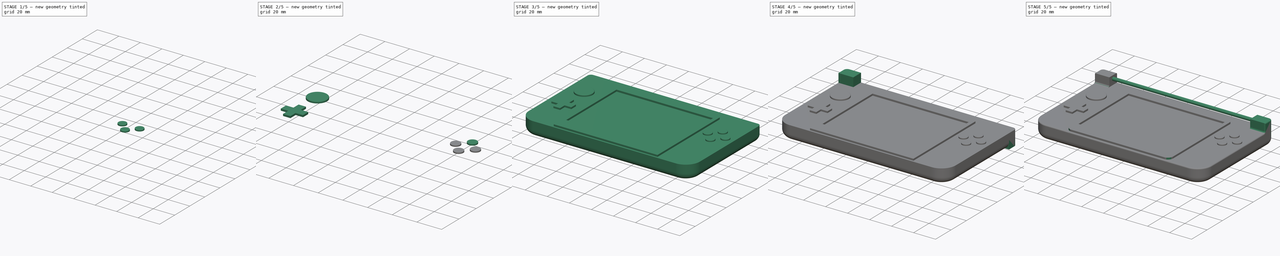
[diagram: build sequence overview — one tinted view per stage of 5, left to right]
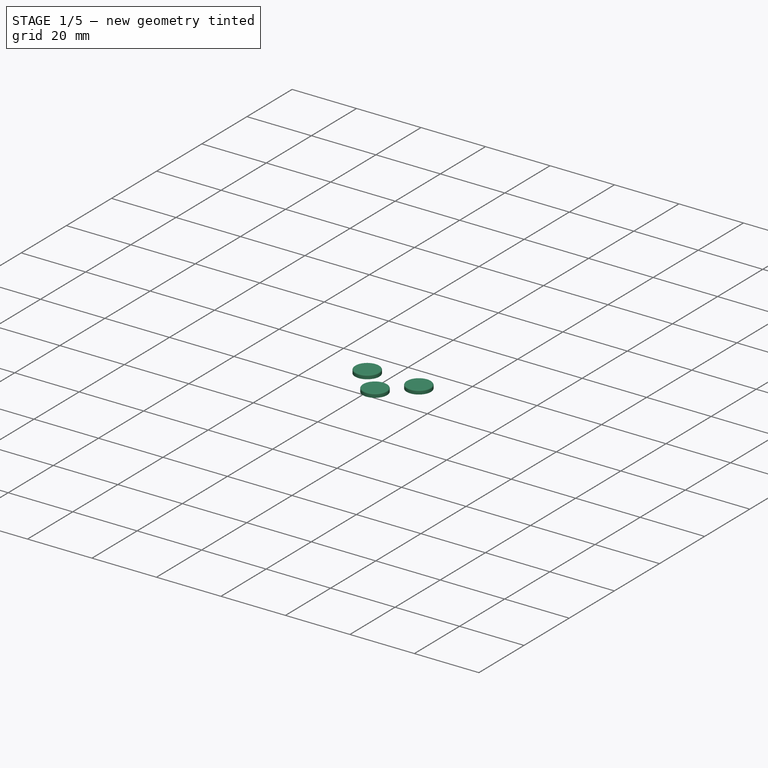
[diagram: stage 1 of 5 — iso view after this stage's code; geometry added in this stage tinted green]
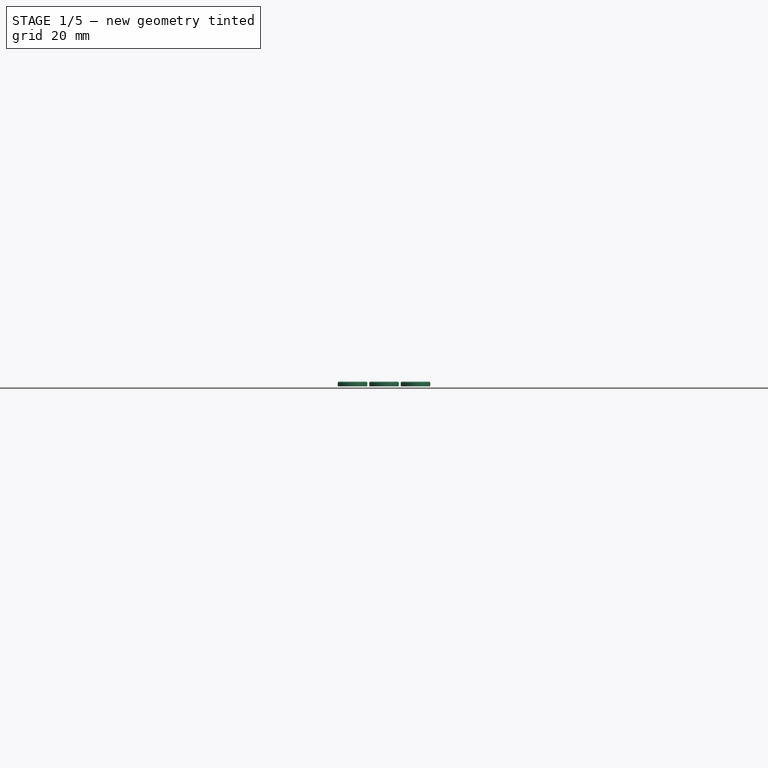
[diagram: stage 1 of 5 — front view after this stage's code; geometry added in this stage tinted green]
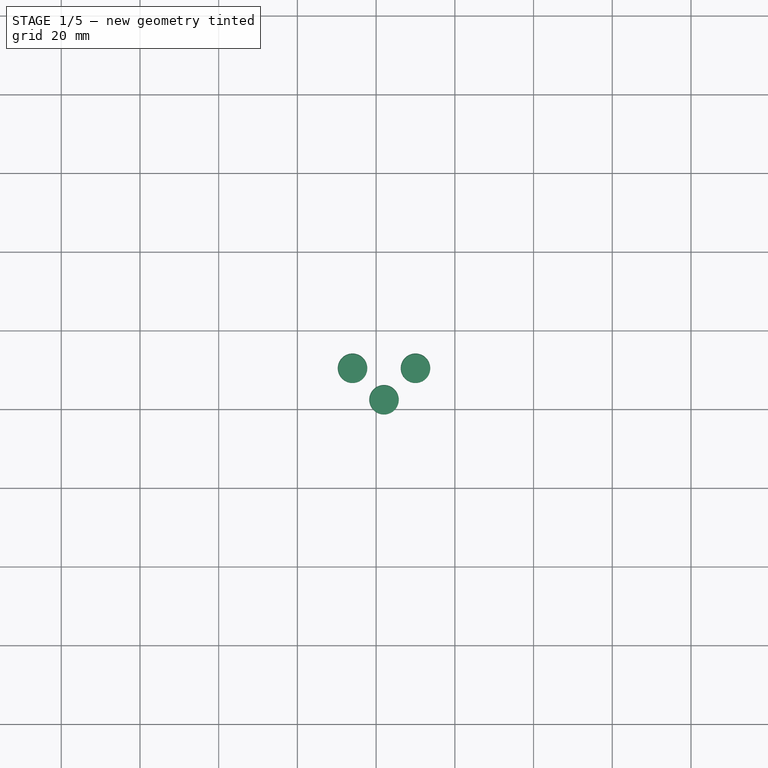
[diagram: stage 1 of 5 — top view after this stage's code; geometry added in this stage tinted green]
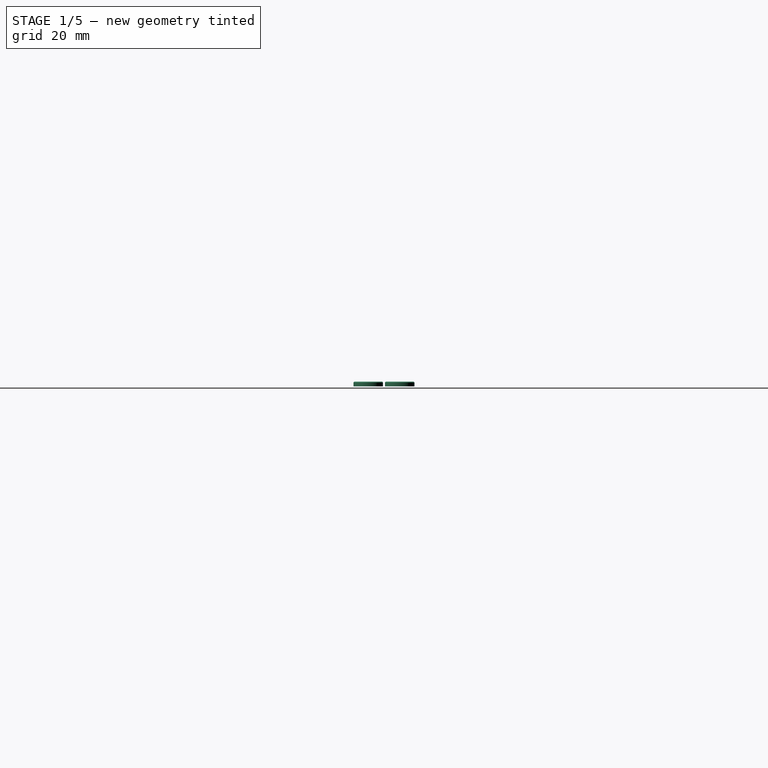
[diagram: stage 1 of 5 — right view after this stage's code; geometry added in this stage tinted green]
FCSTD DOCUMENT  (FreeCAD 0.20R29410 (Git))
Label: Nintendo_3DS_bottom
License: All rights reserved
LicenseURL: http://en.wikipedia.org/wiki/All_rights_reserved
objects: Sketcher::SketchObject×14, PartDesign::Fillet×14, PartDesign::Body×13, PartDesign::Pad×11, PartDesign::Boolean×3, Spreadsheet::Sheet×1, Part::Plane×1, App::Part×1
note: 81 computed .brp shape members not serialized (recipe doc carries the construction recipe); baked Part::Feature solids carry a one-line shape summary decoded from their .brp

FEATURE [PartDesign::Body] Body002  label="screen_perimeter"
  Group = -> [Sketch002,Pad001]
  Origin = -> Origin003
  Placement = pos=(0,0,13.4) rot=(0,0,1;0rad)
  Tip = -> Pad001
  expr: .Placement.Base.z = Spreadsheet.bottom_height
FEATURE [Spreadsheet::Sheet] Spreadsheet
  cells = A1=bottom_height; B1(bottom_height)=13.4; A2=botton_diameter; B2(botton_diameter)=7.5
FEATURE [Sketcher::SketchObject] Sketch005
  FullyConstrained = true
  MapMode = 5
  Support = -> [XY_Plane006]
  sketch-geometry (66):
    g0: LineSegment StartX=-77.5 StartY=46 StartZ=0 EndX=-77.5 EndY=-46 EndZ=0
    g1: LineSegment StartX=-77.5 StartY=-46 StartZ=0 EndX=77.5 EndY=-46 EndZ=0
    g2: LineSegment StartX=77.5 StartY=-46 StartZ=0 EndX=77.5 EndY=46 EndZ=0
    g3: LineSegment StartX=77.5 StartY=46 StartZ=0 EndX=-77.5 EndY=46 EndZ=0
    g4: GeomPoint X=0 Y=0 Z=0
    g5: LineSegment StartX=0 StartY=-46 StartZ=0 EndX=0 EndY=-44.5 EndZ=0
    g6: LineSegment StartX=0 StartY=46 StartZ=0 EndX=0 EndY=36 EndZ=0
    g7: LineSegment StartX=-77.5 StartY=36 StartZ=0 EndX=77.5 EndY=36 EndZ=0
    g8: LineSegment StartX=-47 StartY=36 StartZ=0 EndX=-47 EndY=-44.5 EndZ=0
    g9: LineSegment StartX=-47 StartY=-44.5 StartZ=0 EndX=47 EndY=-44.5 EndZ=0
    g10: LineSegment StartX=47 StartY=-44.5 StartZ=0 EndX=47 EndY=36 EndZ=0
    g11: LineSegment StartX=47 StartY=36 StartZ=0 EndX=-47 EndY=36 EndZ=0
    g12: GeomPoint X=0 Y=-4.25 Z=0
    g13: LineSegment StartX=0 StartY=36 StartZ=0 EndX=0 EndY=32 EndZ=0
    g14: LineSegment StartX=-43.7 StartY=-33 StartZ=0 EndX=-43.7 EndY=32 EndZ=0
    g15: LineSegment StartX=-43.7 StartY=32 StartZ=0 EndX=43.7 EndY=32 EndZ=0
    g16: LineSegment StartX=43.7 StartY=32 StartZ=0 EndX=43.7 EndY=-33 EndZ=0
    g17: LineSegment StartX=43.7 StartY=-33 StartZ=0 EndX=-43.7 EndY=-33 EndZ=0
    g18: GeomPoint X=0 Y=-0.5 Z=0
    g19: LineSegment StartX=43.7 StartY=0 StartZ=0 EndX=47 EndY=0 EndZ=0
    g20: LineSegment StartX=0 StartY=-44.5 StartZ=0 EndX=0 EndY=-38.9 EndZ=0
    g21: LineSegment StartX=40 StartY=-44.5 StartZ=0 EndX=40 EndY=-38.9 EndZ=0
    g22: LineSegment StartX=40 StartY=-38.9 StartZ=0 EndX=-40 EndY=-38.9 EndZ=0
    g23: LineSegment StartX=-40 StartY=-38.9 StartZ=0 EndX=-40 EndY=-44.5 EndZ=0
    g24: LineSegment StartX=-40 StartY=-44.5 StartZ=0 EndX=40 EndY=-44.5 EndZ=0
    g25: GeomPoint X=0 Y=-41.7 Z=0
    g26: LineSegment StartX=14.5 StartY=-44.5 StartZ=0 EndX=14.5 EndY=-38.9 EndZ=0
    g27: LineSegment StartX=14.5 StartY=-38.9 StartZ=0 EndX=-14.5 EndY=-38.9 EndZ=0
    g28: LineSegment StartX=-14.5 StartY=-38.9 StartZ=0 EndX=-14.5 EndY=-44.5 EndZ=0
    g29: LineSegment StartX=-14.5 StartY=-44.5 StartZ=0 EndX=14.5 EndY=-44.5 EndZ=0
    g30: GeomPoint X=0 Y=-41.7 Z=0
    g31: LineSegment StartX=-47 StartY=36 StartZ=0 EndX=47 EndY=36 EndZ=0
    g32: LineSegment StartX=-77.5 StartY=36 StartZ=0 EndX=-62.5 EndY=36 EndZ=0
    g33: LineSegment StartX=-62.5 StartY=36 StartZ=0 EndX=-62.5 EndY=-9.5 EndZ=0
    g34: LineSegment StartX=-62.5 StartY=-9.5 StartZ=0 EndX=-77.5 EndY=-9.5 EndZ=0
    g35: LineSegment StartX=-77.5 StartY=-9.5 StartZ=0 EndX=-77.5 EndY=36 EndZ=0
    g36: LineSegment StartX=-53.5 StartY=-12.5 StartZ=0 EndX=-53.5 EndY=-6.5 EndZ=0
    g37: LineSegment StartX=-53.5 StartY=-6.5 StartZ=0 EndX=-71.5 EndY=-6.5 EndZ=0
    g38: LineSegment StartX=-71.5 StartY=-6.5 StartZ=0 EndX=-71.5 EndY=-12.5 EndZ=0
    g39: LineSegment StartX=-71.5 StartY=-12.5 StartZ=0 EndX=-53.5 EndY=-12.5 EndZ=0
    g40: GeomPoint X=-62.5 Y=-9.5 Z=0
    g41: LineSegment StartX=-65.5 StartY=-0.5 StartZ=0 EndX=-65.5 EndY=-18.5 EndZ=0
    g42: LineSegment StartX=-65.5 StartY=-18.5 StartZ=0 EndX=-59.5 EndY=-18.5 EndZ=0
    g43: LineSegment StartX=-59.5 StartY=-18.5 StartZ=0 EndX=-59.5 EndY=-0.5 EndZ=0
    g44: LineSegment StartX=-59.5 StartY=-0.5 StartZ=0 EndX=-65.5 EndY=-0.5 EndZ=0
    g45: GeomPoint X=-62.5 Y=-9.5 Z=0
    g46: GeomPoint X=-59.5 Y=-6.5 Z=0
    g47: GeomPoint X=-59.5 Y=-6.5 Z=0
    g48: GeomPoint X=-65.5 Y=-6.5 Z=0
    g49: GeomPoint X=-65.5 Y=-6.5 Z=0
    g50: GeomPoint X=-65.5 Y=-12.5 Z=0
    g51: GeomPoint X=-65.5 Y=-12.5 Z=0
    g52: GeomPoint X=-59.5 Y=-12.5 Z=0
    g53: GeomPoint X=-59.5 Y=-12.5 Z=0
    g54: LineSegment StartX=-59.5 StartY=-0.5 StartZ=0 EndX=-65.5 EndY=-0.5 EndZ=0
    g55: LineSegment StartX=-65.5 StartY=-0.5 StartZ=0 EndX=-65.5 EndY=-6.5 EndZ=0
    g56: LineSegment StartX=-65.5 StartY=-6.5 StartZ=0 EndX=-71.5 EndY=-6.5 EndZ=0
    g57: LineSegment StartX=-71.5 StartY=-6.5 StartZ=0 EndX=-71.5 EndY=-12.5 EndZ=0
    g58: LineSegment StartX=-71.5 StartY=-12.5 StartZ=0 EndX=-65.5 EndY=-12.5 EndZ=0
    g59: LineSegment StartX=-65.5 StartY=-12.5 StartZ=0 EndX=-65.5 EndY=-18.5 EndZ=0
    g60: LineSegment StartX=-65.5 StartY=-18.5 StartZ=0 EndX=-59.5 EndY=-18.5 EndZ=0
    g61: LineSegment StartX=-59.5 StartY=-18.5 StartZ=0 EndX=-59.5 EndY=-12.5 EndZ=0
    g62: LineSegment StartX=-59.5 StartY=-12.5 StartZ=0 EndX=-53.5 EndY=-12.5 EndZ=0
    g63: LineSegment StartX=-53.5 StartY=-12.5 StartZ=0 EndX=-53.5 EndY=-6.5 EndZ=0
    g64: LineSegment StartX=-53.5 StartY=-6.5 StartZ=0 EndX=-59.5 EndY=-6.5 EndZ=0
    g65: LineSegment StartX=-59.5 StartY=-6.5 StartZ=0 EndX=-59.5 EndY=-0.5 EndZ=0
  constraints (158):
    c: Coincident(g0,g1)
    c: Coincident(g1,g2)
    c: Coincident(g2,g3)
    c: Coincident(g3,g0)
    c: Horizontal(g1)
    c: Horizontal(g3)
    c: Vertical(g0)
    c: Vertical(g2)
    c: Symmetric(g1,g0,g4)
    c: Coincident(g4,g-1)
    c: Distance(g1) = 155
    c: Distance(g2) = 92
    c: PointOnObject(g5,g1)
    c: PointOnObject(g5,g-2)
    c: Vertical(g5)
    c: Distance(g5) = 1.5
    c: PointOnObject(g6,g3)
    c: PointOnObject(g6,g-2)
    c: Vertical(g6)
    c: Distance(g6) = 10
    c: PointOnObject(g7,g0)
    c: PointOnObject(g7,g2)
    c: Horizontal(g7)
    c: PointOnObject(g6,g7)
    c: Coincident(g8,g9)
    c: Coincident(g9,g10)
    c: Coincident(g10,g11)
    c: Coincident(g11,g8)
    c: Horizontal(g9)
    c: Horizontal(g11)
    c: Vertical(g8)
    c: Vertical(g10)
    c: Symmetric(g9,g8,g12)
    c: PointOnObject(g12,g-2)
    c: PointOnObject(g6,g11)
    c: PointOnObject(g5,g9)
    c: Distance(g9) = 94
    c: Coincident(g13,g6)
    c: PointOnObject(g13,g-2)
    c: Distance(g13) = 4
    c: Coincident(g14,g15)
    c: Coincident(g15,g16)
    c: Coincident(g16,g17)
    c: Coincident(g17,g14)
    c: Horizontal(g15)
    c: Horizontal(g17)
    c: Vertical(g14)
    c: Vertical(g16)
    c: Symmetric(g15,g14,g18)
    c: PointOnObject(g18,g-2)
    c: PointOnObject(g13,g15)
    c: PointOnObject(g19,g16)
    c: PointOnObject(g19,g10)
    c: Horizontal(g19)
    c: Distance(g19) = 3.3
    c: Distance(g14) = 65
    c: Coincident(g20,g5)
    c: PointOnObject(g20,g-2)
    c: Distance(g20) = 5.6
    c: Coincident(g21,g22)
    c: Coincident(g22,g23)
    c: Coincident(g23,g24)
    c: Coincident(g24,g21)
    c: Horizontal(g22)
    c: Horizontal(g24)
    c: Vertical(g21)
    c: Vertical(g23)
    c: Symmetric(g22,g21,g25)
    c: PointOnObject(g25,g20)
    c: PointOnObject(g20,g22)
    c: PointOnObject(g5,g24)
    c: Distance(g22) = 80
    c: Coincident(g26,g27)
    c: Coincident(g27,g28)
    c: Coincident(g28,g29)
    c: Coincident(g29,g26)
    c: Horizontal(g27)
    c: Horizontal(g29)
    c: Vertical(g26)
    c: Vertical(g28)
    c: Symmetric(g27,g26,g30)
    c: Coincident(g30,g25)
    c: Distance(g27) = 29
    c: PointOnObject(g20,g27)
    c: PointOnObject(g19,g-1)
    c: Coincident(g31,g8)
    c: Coincident(g31,g10)
    c: Coincident(g32,g33)
    c: Coincident(g33,g34)
    c: Coincident(g34,g35)
    c: Coincident(g35,g32)
    c: Horizontal(g32)
    c: Horizontal(g34)
    c: Vertical(g33)
    c: Vertical(g35)
    c: Coincident(g32,g7)
    c: Distance(g34) = 15
    c: Distance(g33) = 45.5
    c: Coincident(g36,g37)
    c: Coincident(g37,g38)
    c: Coincident(g38,g39)
    c: Coincident(g39,g36)
    c: Horizontal(g37)
    c: Horizontal(g39)
    c: Vertical(g36)
    c: Vertical(g38)
    c: Symmetric(g37,g36,g40)
    c: Coincident(g40,g33)
    c: Distance(g36) = 6
    c: Distance(g37) = 18
    c: Coincident(g41,g42)
    c: Coincident(g42,g43)
    c: Coincident(g43,g44)
    c: Coincident(g44,g41)
    c: Horizontal(g42)
    c: Horizontal(g44)
    c: Vertical(g41)
    c: Vertical(g43)
    c: Symmetric(g42,g41,g45)
    c: Coincident(g45,g33)
    c: Distance(g44) = 6
    c: Distance(g43) = 18
    c: PointOnObject(g46,g43)
    c: PointOnObject(g47,g37)
    c: Coincident(g47,g46)
    c: PointOnObject(g48,g37)
    c: PointOnObject(g49,g41)
    c: PointOnObject(g50,g39)
    c: PointOnObject(g51,g41)
    c: PointOnObject(g52,g39)
    c: PointOnObject(g53,g43)
    c: Coincident(g52,g53)
    c: Coincident(g48,g49)
    c: Coincident(g50,g51)
    c: Coincident(g43,g54)
    c: Coincident(g54,g41)
    c: Coincident(g54,g55)
    c: Coincident(g55,g48)
    c: Coincident(g55,g56)
    c: Coincident(g56,g37)
    c: Coincident(g56,g57)
    c: Coincident(g57,g38)
    c: Coincident(g57,g58)
    c: Coincident(g58,g50)
    c: Coincident(g58,g59)
    c: Coincident(g59,g41)
    c: Coincident(g59,g60)
    c: Coincident(g60,g42)
    c: Coincident(g60,g61)
    c: Coincident(g61,g52)
    c: Coincident(g61,g62)
    c: Coincident(g62,g36)
    c: Coincident(g62,g63)
    c: Coincident(g63,g36)
    c: Coincident(g63,g64)
    c: Coincident(g64,g46)
    c: Coincident(g64,g65)
    c: Coincident(g65,g54)
FEATURE [Sketcher::SketchObject] Sketch006
  FullyConstrained = true
  MapMode = 5
  Support = -> [XY_Plane007]
  sketch-geometry (37):
    g0: LineSegment StartX=-77.5 StartY=46 StartZ=0 EndX=-77.5 EndY=-46 EndZ=0
    g1: LineSegment StartX=-77.5 StartY=-46 StartZ=0 EndX=77.5 EndY=-46 EndZ=0
    g2: LineSegment StartX=77.5 StartY=-46 StartZ=0 EndX=77.5 EndY=46 EndZ=0
    g3: LineSegment StartX=77.5 StartY=46 StartZ=0 EndX=-77.5 EndY=46 EndZ=0
    g4: GeomPoint X=0 Y=0 Z=0
    g5: LineSegment StartX=0 StartY=-46 StartZ=0 EndX=0 EndY=-44.5 EndZ=0
    g6: LineSegment StartX=0 StartY=46 StartZ=0 EndX=0 EndY=36 EndZ=0
    g7: LineSegment StartX=-77.5 StartY=36 StartZ=0 EndX=77.5 EndY=36 EndZ=0
    g8: LineSegment StartX=-47 StartY=36 StartZ=0 EndX=-47 EndY=-44.5 EndZ=0
    g9: LineSegment StartX=-47 StartY=-44.5 StartZ=0 EndX=47 EndY=-44.5 EndZ=0
    g10: LineSegment StartX=47 StartY=-44.5 StartZ=0 EndX=47 EndY=36 EndZ=0
    g11: LineSegment StartX=47 StartY=36 StartZ=0 EndX=-47 EndY=36 EndZ=0
    g12: GeomPoint X=0 Y=-4.25 Z=0
    g13: LineSegment StartX=0 StartY=36 StartZ=0 EndX=0 EndY=32 EndZ=0
    g14: LineSegment StartX=-43.7 StartY=-33 StartZ=0 EndX=-43.7 EndY=32 EndZ=0
    g15: LineSegment StartX=-43.7 StartY=32 StartZ=0 EndX=43.7 EndY=32 EndZ=0
    g16: LineSegment StartX=43.7 StartY=32 StartZ=0 EndX=43.7 EndY=-33 EndZ=0
    g17: LineSegment StartX=43.7 StartY=-33 StartZ=0 EndX=-43.7 EndY=-33 EndZ=0
    g18: GeomPoint X=0 Y=-0.5 Z=0
    g19: LineSegment StartX=43.7 StartY=0 StartZ=0 EndX=47 EndY=0 EndZ=0
    g20: LineSegment StartX=0 StartY=-44.5 StartZ=0 EndX=0 EndY=-38.9 EndZ=0
    g21: LineSegment StartX=40 StartY=-44.5 StartZ=0 EndX=40 EndY=-38.9 EndZ=0
    g22: LineSegment StartX=40 StartY=-38.9 StartZ=0 EndX=-40 EndY=-38.9 EndZ=0
    g23: LineSegment StartX=-40 StartY=-38.9 StartZ=0 EndX=-40 EndY=-44.5 EndZ=0
    g24: LineSegment StartX=-40 StartY=-44.5 StartZ=0 EndX=40 EndY=-44.5 EndZ=0
    g25: GeomPoint X=0 Y=-41.7 Z=0
    g26: LineSegment StartX=14.5 StartY=-44.5 StartZ=0 EndX=14.5 EndY=-38.9 EndZ=0
    g27: LineSegment StartX=14.5 StartY=-38.9 StartZ=0 EndX=-14.5 EndY=-38.9 EndZ=0
    g28: LineSegment StartX=-14.5 StartY=-38.9 StartZ=0 EndX=-14.5 EndY=-44.5 EndZ=0
    g29: LineSegment StartX=-14.5 StartY=-44.5 StartZ=0 EndX=14.5 EndY=-44.5 EndZ=0
    g30: GeomPoint X=0 Y=-41.7 Z=0
    g31: LineSegment StartX=-47 StartY=36 StartZ=0 EndX=47 EndY=36 EndZ=0
    g32: LineSegment StartX=-77.5 StartY=36 StartZ=0 EndX=-62.5 EndY=36 EndZ=0
    g33: LineSegment StartX=-62.5 StartY=36 StartZ=0 EndX=-62.5 EndY=17 EndZ=0
    g34: LineSegment StartX=-62.5 StartY=17 StartZ=0 EndX=-77.5 EndY=17 EndZ=0
    g35: LineSegment StartX=-77.5 StartY=17 StartZ=0 EndX=-77.5 EndY=36 EndZ=0
    g36: Circle CenterX=-62.5 CenterY=17 CenterZ=0 NormalX=0 NormalY=0 NormalZ=1 AngleXU=0 Radius=7.75
  constraints (100):
    c: Coincident(g0,g1)
    c: Coincident(g1,g2)
    c: Coincident(g2,g3)
    c: Coincident(g3,g0)
    c: Horizontal(g1)
    c: Horizontal(g3)
    c: Vertical(g0)
    c: Vertical(g2)
    c: Symmetric(g1,g0,g4)
    c: Coincident(g4,g-1)
    c: Distance(g1) = 155
    c: Distance(g2) = 92
    c: PointOnObject(g5,g1)
    c: PointOnObject(g5,g-2)
    c: Vertical(g5)
    c: Distance(g5) = 1.5
    c: PointOnObject(g6,g3)
    c: PointOnObject(g6,g-2)
    c: Vertical(g6)
    c: Distance(g6) = 10
    c: PointOnObject(g7,g0)
    c: PointOnObject(g7,g2)
    c: Horizontal(g7)
    c: PointOnObject(g6,g7)
    c: Coincident(g8,g9)
    c: Coincident(g9,g10)
    c: Coincident(g10,g11)
    c: Coincident(g11,g8)
    c: Horizontal(g9)
    c: Horizontal(g11)
    c: Vertical(g8)
    c: Vertical(g10)
    c: Symmetric(g9,g8,g12)
    c: PointOnObject(g12,g-2)
    c: PointOnObject(g6,g11)
    c: PointOnObject(g5,g9)
    c: Distance(g9) = 94
    c: Coincident(g13,g6)
    c: PointOnObject(g13,g-2)
    c: Distance(g13) = 4
    c: Coincident(g14,g15)
    c: Coincident(g15,g16)
    c: Coincident(g16,g17)
    c: Coincident(g17,g14)
    c: Horizontal(g15)
    c: Horizontal(g17)
    c: Vertical(g14)
    c: Vertical(g16)
    c: Symmetric(g15,g14,g18)
    c: PointOnObject(g18,g-2)
    c: PointOnObject(g13,g15)
    c: PointOnObject(g19,g16)
    c: PointOnObject(g19,g10)
    c: Horizontal(g19)
    c: Distance(g19) = 3.3
    c: Distance(g14) = 65
    c: Coincident(g20,g5)
    c: PointOnObject(g20,g-2)
    c: Distance(g20) = 5.6
    c: Coincident(g21,g22)
    c: Coincident(g22,g23)
    c: Coincident(g23,g24)
    c: Coincident(g24,g21)
    c: Horizontal(g22)
    c: Horizontal(g24)
    c: Vertical(g21)
    c: Vertical(g23)
    c: Symmetric(g22,g21,g25)
    c: PointOnObject(g25,g20)
    c: PointOnObject(g20,g22)
    c: PointOnObject(g5,g24)
    c: Distance(g22) = 80
    c: Coincident(g26,g27)
    c: Coincident(g27,g28)
    c: Coincident(g28,g29)
    c: Coincident(g29,g26)
    c: Horizontal(g27)
    c: Horizontal(g29)
    c: Vertical(g26)
    c: Vertical(g28)
    c: Symmetric(g27,g26,g30)
    c: Coincident(g30,g25)
    c: Distance(g27) = 29
    c: PointOnObject(g20,g27)
    c: PointOnObject(g19,g-1)
    c: Coincident(g31,g8)
    c: Coincident(g31,g10)
    c: Coincident(g32,g33)
    c: Coincident(g33,g34)
    c: Coincident(g34,g35)
    c: Coincident(g35,g32)
    c: Horizontal(g32)
    c: Horizontal(g34)
    c: Vertical(g33)
    c: Vertical(g35)
    c: Coincident(g32,g7)
    c: Distance(g33) = 19
    c: Distance(g34) = 15
    c: Coincident(g36,g33)
    c: Diameter(g36) = 15.5
FEATURE [PartDesign::Pad] Pad002
  Direction = (0,0,1)
  Length = 1.2
  Length2 = 10
  Profile = -> Sketch004
  ReferenceAxis = -> Sketch004 [N_Axis]
  Refine = true
  Type = 0
FEATURE [Sketcher::SketchObject] Sketch009
  FullyConstrained = true
  MapMode = 5
  Support = -> [XY_Plane010]
  sketch-geometry (44):
    g0: LineSegment StartX=-77.5 StartY=46 StartZ=0 EndX=-77.5 EndY=-46 EndZ=0
    g1: LineSegment StartX=-77.5 StartY=-46 StartZ=0 EndX=77.5 EndY=-46 EndZ=0
    g2: LineSegment StartX=77.5 StartY=-46 StartZ=0 EndX=77.5 EndY=46 EndZ=0
    g3: LineSegment StartX=77.5 StartY=46 StartZ=0 EndX=-77.5 EndY=46 EndZ=0
    g4: GeomPoint X=0 Y=0 Z=0
    g5: LineSegment StartX=0 StartY=-46 StartZ=0 EndX=0 EndY=-44.5 EndZ=0
    g6: LineSegment StartX=0 StartY=46 StartZ=0 EndX=0 EndY=36 EndZ=0
    g7: LineSegment StartX=-77.5 StartY=36 StartZ=0 EndX=77.5 EndY=36 EndZ=0
    g8: LineSegment StartX=-47 StartY=36 StartZ=0 EndX=-47 EndY=-44.5 EndZ=0
    g9: LineSegment StartX=-47 StartY=-44.5 StartZ=0 EndX=47 EndY=-44.5 EndZ=0
    g10: LineSegment StartX=47 StartY=-44.5 StartZ=0 EndX=47 EndY=36 EndZ=0
    g11: LineSegment StartX=47 StartY=36 StartZ=0 EndX=-47 EndY=36 EndZ=0
    g12: GeomPoint X=0 Y=-4.25 Z=0
    g13: LineSegment StartX=0 StartY=36 StartZ=0 EndX=0 EndY=32 EndZ=0
    g14: LineSegment StartX=-43.7 StartY=-33 StartZ=0 EndX=-43.7 EndY=32 EndZ=0
    g15: LineSegment StartX=-43.7 StartY=32 StartZ=0 EndX=43.7 EndY=32 EndZ=0
    g16: LineSegment StartX=43.7 StartY=32 StartZ=0 EndX=43.7 EndY=-33 EndZ=0
    g17: LineSegment StartX=43.7 StartY=-33 StartZ=0 EndX=-43.7 EndY=-33 EndZ=0
    g18: GeomPoint X=0 Y=-0.5 Z=0
    g19: LineSegment StartX=43.7 StartY=0 StartZ=0 EndX=47 EndY=0 EndZ=0
    g20: LineSegment StartX=0 StartY=-44.5 StartZ=0 EndX=0 EndY=-38.9 EndZ=0
    g21: LineSegment StartX=40 StartY=-44.5 StartZ=0 EndX=40 EndY=-38.9 EndZ=0
    g22: LineSegment StartX=40 StartY=-38.9 StartZ=0 EndX=-40 EndY=-38.9 EndZ=0
    g23: LineSegment StartX=-40 StartY=-38.9 StartZ=0 EndX=-40 EndY=-44.5 EndZ=0
    g24: LineSegment StartX=-40 StartY=-44.5 StartZ=0 EndX=40 EndY=-44.5 EndZ=0
    g25: GeomPoint X=0 Y=-41.7 Z=0
    g26: LineSegment StartX=14.5 StartY=-44.5 StartZ=0 EndX=14.5 EndY=-38.9 EndZ=0
    g27: LineSegment StartX=14.5 StartY=-38.9 StartZ=0 EndX=-14.5 EndY=-38.9 EndZ=0
    g28: LineSegment StartX=-14.5 StartY=-38.9 StartZ=0 EndX=-14.5 EndY=-44.5 EndZ=0
    g29: LineSegment StartX=-14.5 StartY=-44.5 StartZ=0 EndX=14.5 EndY=-44.5 EndZ=0
    g30: GeomPoint X=0 Y=-41.7 Z=0
    g31: LineSegment StartX=-47 StartY=36 StartZ=0 EndX=47 EndY=36 EndZ=0
    g32: LineSegment StartX=77.5 StartY=36 StartZ=0 EndX=62 EndY=36 EndZ=0
    g33: LineSegment StartX=62 StartY=36 StartZ=0 EndX=62 EndY=10.5 EndZ=0
    g34: LineSegment StartX=62 StartY=10.5 StartZ=0 EndX=77.5 EndY=10.5 EndZ=0
    g35: LineSegment StartX=77.5 StartY=10.5 StartZ=0 EndX=77.5 EndY=36 EndZ=0
    g36: LineSegment StartX=62 StartY=10.5 StartZ=0 EndX=62 EndY=2.5 EndZ=0
    g37: Circle CenterX=62 CenterY=2.5 CenterZ=0 NormalX=0 NormalY=0 NormalZ=1 AngleXU=0 Radius=3.75
    g38: LineSegment StartX=62 StartY=2.5 StartZ=0 EndX=70 EndY=10.5 EndZ=0
    g39: LineSegment StartX=70 StartY=10.5 StartZ=0 EndX=62 EndY=18.5 EndZ=0
    g40: LineSegment StartX=62 StartY=18.5 StartZ=0 EndX=54 EndY=10.5 EndZ=0
    g41: LineSegment StartX=54 StartY=10.5 StartZ=0 EndX=62 EndY=2.5 EndZ=0
    g42: Circle CenterX=62 CenterY=10.5 CenterZ=0 NormalX=0 NormalY=0 NormalZ=1 AngleXU=0 Radius=8
    g43: Circle CenterX=70 CenterY=10.5 CenterZ=0 NormalX=0 NormalY=0 NormalZ=1 AngleXU=0 Radius=3.75
  constraints (118):
    c: Coincident(g0,g1)
    c: Coincident(g1,g2)
    c: Coincident(g2,g3)
    c: Coincident(g3,g0)
    c: Horizontal(g1)
    c: Horizontal(g3)
    c: Vertical(g0)
    c: Vertical(g2)
    c: Symmetric(g1,g0,g4)
    c: Coincident(g4,g-1)
    c: Distance(g1) = 155
    c: Distance(g2) = 92
    c: PointOnObject(g5,g1)
    c: PointOnObject(g5,g-2)
    c: Vertical(g5)
    c: Distance(g5) = 1.5
    c: PointOnObject(g6,g3)
    c: PointOnObject(g6,g-2)
    c: Vertical(g6)
    c: Distance(g6) = 10
    c: PointOnObject(g7,g0)
    c: PointOnObject(g7,g2)
    c: Horizontal(g7)
    c: PointOnObject(g6,g7)
    c: Coincident(g8,g9)
    c: Coincident(g9,g10)
    c: Coincident(g10,g11)
    c: Coincident(g11,g8)
    c: Horizontal(g9)
    c: Horizontal(g11)
    c: Vertical(g8)
    c: Vertical(g10)
    c: Symmetric(g9,g8,g12)
    c: PointOnObject(g12,g-2)
    c: PointOnObject(g6,g11)
    c: PointOnObject(g5,g9)
    c: Distance(g9) = 94
    c: Coincident(g13,g6)
    c: PointOnObject(g13,g-2)
    c: Distance(g13) = 4
    c: Coincident(g14,g15)
    c: Coincident(g15,g16)
    c: Coincident(g16,g17)
    c: Coincident(g17,g14)
    c: Horizontal(g15)
    c: Horizontal(g17)
    c: Vertical(g14)
    c: Vertical(g16)
    c: Symmetric(g15,g14,g18)
    c: PointOnObject(g18,g-2)
    c: PointOnObject(g13,g15)
    c: PointOnObject(g19,g16)
    c: PointOnObject(g19,g10)
    c: Horizontal(g19)
    c: Distance(g19) = 3.3
    c: Distance(g14) = 65
    c: Coincident(g20,g5)
    c: PointOnObject(g20,g-2)
    c: Distance(g20) = 5.6
    c: Coincident(g21,g22)
    c: Coincident(g22,g23)
    c: Coincident(g23,g24)
    c: Coincident(g24,g21)
    c: Horizontal(g22)
    c: Horizontal(g24)
    c: Vertical(g21)
    c: Vertical(g23)
    c: Symmetric(g22,g21,g25)
    c: PointOnObject(g25,g20)
    c: PointOnObject(g20,g22)
    c: PointOnObject(g5,g24)
    c: Distance(g22) = 80
    c: Coincident(g26,g27)
    c: Coincident(g27,g28)
    c: Coincident(g28,g29)
    c: Coincident(g29,g26)
    c: Horizontal(g27)
    c: Horizontal(g29)
    c: Vertical(g26)
    c: Vertical(g28)
    c: Symmetric(g27,g26,g30)
    c: Coincident(g30,g25)
    c: Distance(g27) = 29
    c: PointOnObject(g20,g27)
    c: PointOnObject(g19,g-1)
    c: Coincident(g31,g8)
    c: Coincident(g31,g10)
    c: Coincident(g32,g33)
    c: Coincident(g33,g34)
    c: Coincident(g34,g35)
    c: Coincident(g35,g32)
    c: Horizontal(g32)
    c: Horizontal(g34)
    c: Vertical(g33)
    c: Vertical(g35)
    c: Coincident(g32,g7)
    c: Distance(g33) = 25.5
    c: Distance(g34) = 15.5
    c: Coincident(g36,g33)
    c: Vertical(g36)
    c: Distance(g36) = 8
    c: Coincident(g37,g36)
    c: Coincident(g38,g39)
    c: Coincident(g39,g40)
    c: Coincident(g40,g41)
    c: Coincident(g41,g38)
    c: Equal(g38,g39)
    c: Equal(g38,g40)
    c: Equal(g38,g41)
    c: PointOnObject(g38,g42)
    c: PointOnObject(g39,g42)
    c: PointOnObject(g40,g42)
    c: PointOnObject(g41,g42)
    c: Coincident(g42,g33)
    c: Coincident(g41,g37)
    c: Diameter(g37) = 7.5
    c: Coincident(g43,g38)
    c: Diameter(g43) = 7.5
FEATURE [PartDesign::Pad] Pad005
  Direction = (0,0,1)
  Length = 1.2
  Length2 = 10
  Profile = -> Sketch009
  ReferenceAxis = -> Sketch009 [N_Axis]
  Refine = true
  Type = 0
FEATURE [PartDesign::Pad] Pad003
  Direction = (0,0,1)
  Length = 1.2
  Length2 = 10
  Profile = -> Sketch007
  ReferenceAxis = -> Sketch007 [N_Axis]
  Refine = true
  Type = 0
FEATURE [PartDesign::Body] Body008  label="buttonsX"
  Group = -> [Sketch008,Pad004,Fillet004]
  Origin = -> Origin009
  Placement = pos=(0,0,13.4) rot=(0,0,1;0rad)
  Tip = -> Fillet004
  expr: .Placement.Base.z = Spreadsheet.bottom_height
FEATURE [PartDesign::Fillet] Fillet005
  Base = -> Pad003 [Edge3]
  BaseFeature = -> Pad003
  Radius = 0.3
  Refine = true
  SupportTransform = false
  UseAllEdges = false
FEATURE [PartDesign::Body] Body007  label="buttonsY"
  Group = -> [Sketch007,Pad003,Fillet005]
  Origin = -> Origin008
  Placement = pos=(0,0,13.4) rot=(0,0,1;0rad)
  Tip = -> Fillet005
  expr: .Placement.Base.z = Spreadsheet.bottom_height
FEATURE [PartDesign::Fillet] Fillet006
  Base = -> Pad002 [Edge3]
  BaseFeature = -> Pad002
  Radius = 0.3
  Refine = true
  SupportTransform = false
  UseAllEdges = false
FEATURE [PartDesign::Body] Body004  label="buttonsB"
  Group = -> [Sketch004,Pad002,Fillet006]
  Origin = -> Origin005
  Placement = pos=(0,0,13.4) rot=(0,0,1;0rad)
  Tip = -> Fillet006
  expr: .Placement.Base.z = Spreadsheet.bottom_height
FEATURE [PartDesign::Fillet] Fillet007
  Base = -> Pad005 [Edge3]
  BaseFeature = -> Pad005
  Radius = 0.3
  Refine = true
  SupportTransform = false
  UseAllEdges = false
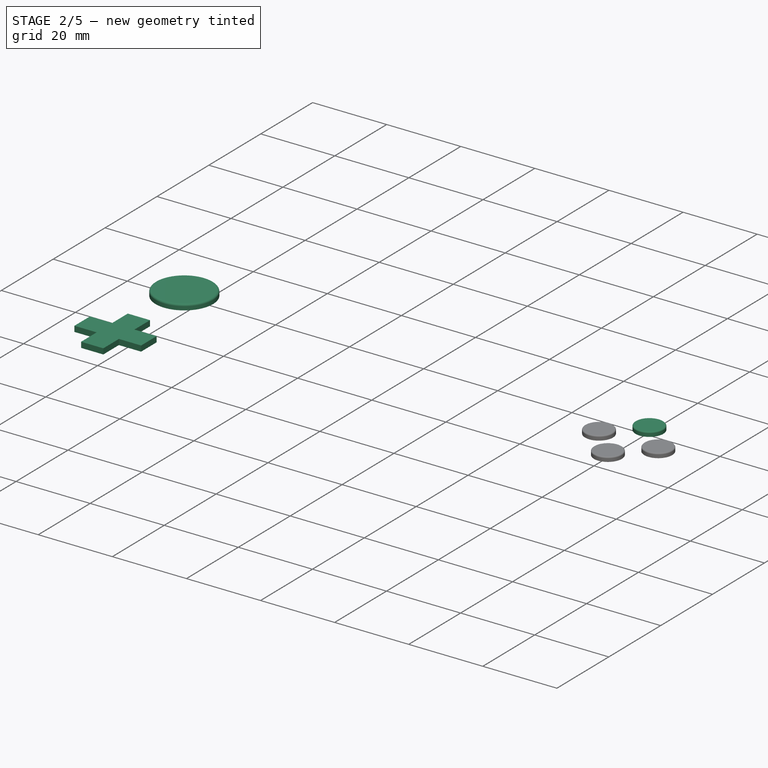
[diagram: stage 2 of 5 — iso view after this stage's code; geometry added in this stage tinted green]
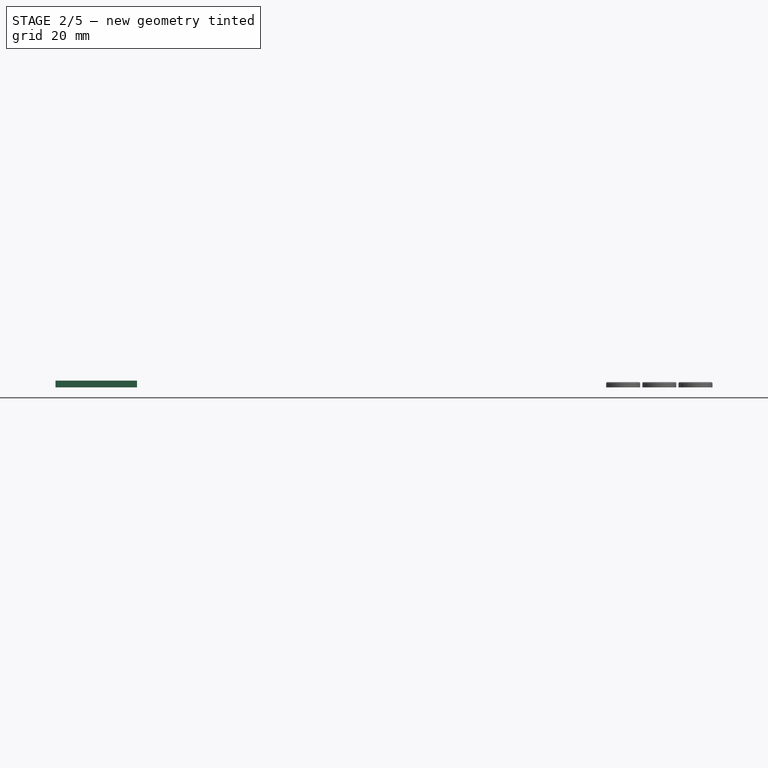
[diagram: stage 2 of 5 — front view after this stage's code; geometry added in this stage tinted green]
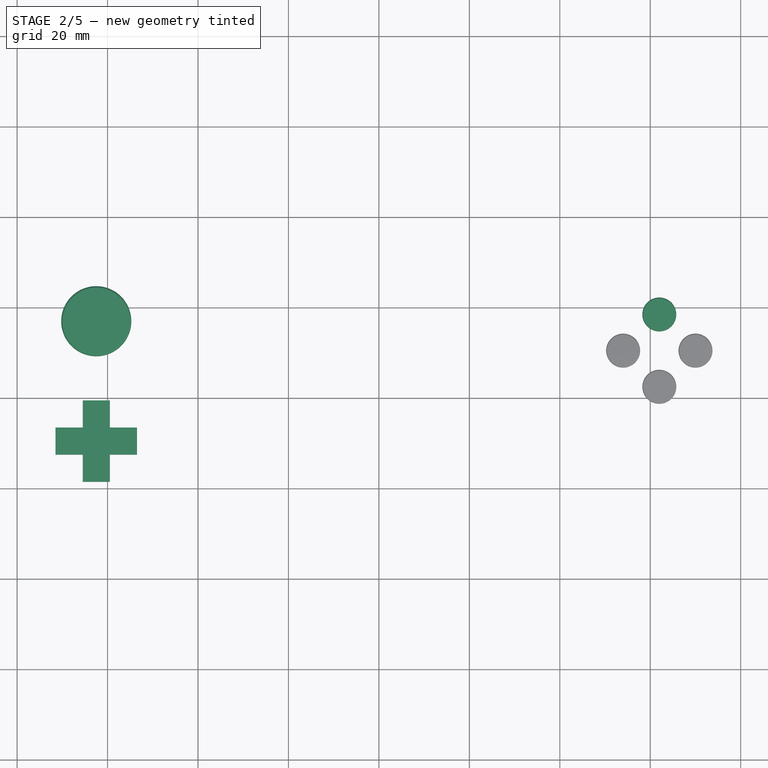
[diagram: stage 2 of 5 — top view after this stage's code; geometry added in this stage tinted green]
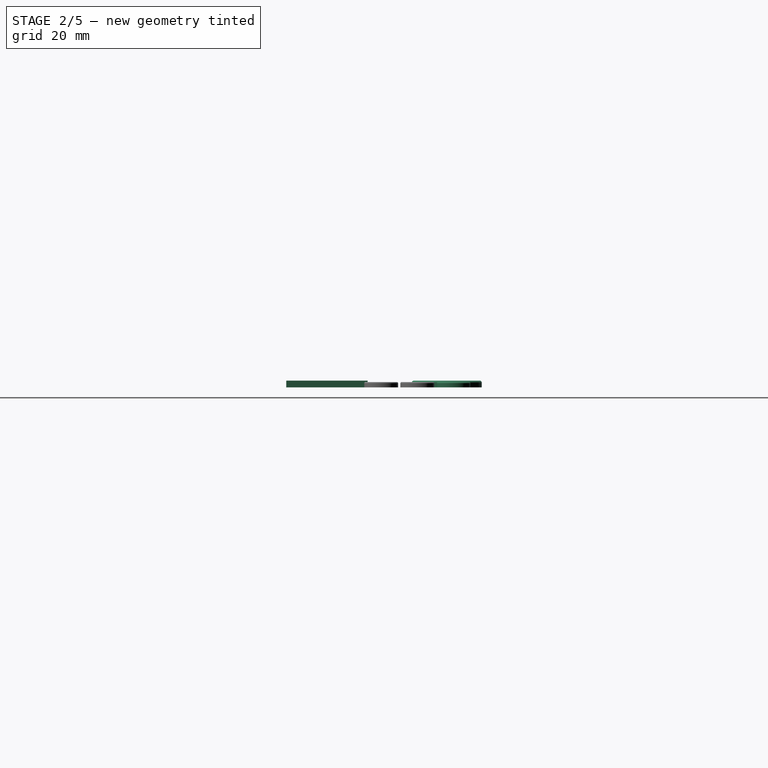
[diagram: stage 2 of 5 — right view after this stage's code; geometry added in this stage tinted green]
FEATURE [Sketcher::SketchObject] Sketch007
  FullyConstrained = true
  MapMode = 5
  Support = -> [XY_Plane008]
  sketch-geometry (44):
    g0: LineSegment StartX=-77.5 StartY=46 StartZ=0 EndX=-77.5 EndY=-46 EndZ=0
    g1: LineSegment StartX=-77.5 StartY=-46 StartZ=0 EndX=77.5 EndY=-46 EndZ=0
    g2: LineSegment StartX=77.5 StartY=-46 StartZ=0 EndX=77.5 EndY=46 EndZ=0
    g3: LineSegment StartX=77.5 StartY=46 StartZ=0 EndX=-77.5 EndY=46 EndZ=0
    g4: GeomPoint X=0 Y=0 Z=0
    g5: LineSegment StartX=0 StartY=-46 StartZ=0 EndX=0 EndY=-44.5 EndZ=0
    g6: LineSegment StartX=0 StartY=46 StartZ=0 EndX=0 EndY=36 EndZ=0
    g7: LineSegment StartX=-77.5 StartY=36 StartZ=0 EndX=77.5 EndY=36 EndZ=0
    g8: LineSegment StartX=-47 StartY=36 StartZ=0 EndX=-47 EndY=-44.5 EndZ=0
    g9: LineSegment StartX=-47 StartY=-44.5 StartZ=0 EndX=47 EndY=-44.5 EndZ=0
    g10: LineSegment StartX=47 StartY=-44.5 StartZ=0 EndX=47 EndY=36 EndZ=0
    g11: LineSegment StartX=47 StartY=36 StartZ=0 EndX=-47 EndY=36 EndZ=0
    g12: GeomPoint X=0 Y=-4.25 Z=0
    g13: LineSegment StartX=0 StartY=36 StartZ=0 EndX=0 EndY=32 EndZ=0
    g14: LineSegment StartX=-43.7 StartY=-33 StartZ=0 EndX=-43.7 EndY=32 EndZ=0
    g15: LineSegment StartX=-43.7 StartY=32 StartZ=0 EndX=43.7 EndY=32 EndZ=0
    g16: LineSegment StartX=43.7 StartY=32 StartZ=0 EndX=43.7 EndY=-33 EndZ=0
    g17: LineSegment StartX=43.7 StartY=-33 StartZ=0 EndX=-43.7 EndY=-33 EndZ=0
    g18: GeomPoint X=0 Y=-0.5 Z=0
    g19: LineSegment StartX=43.7 StartY=0 StartZ=0 EndX=47 EndY=0 EndZ=0
    g20: LineSegment StartX=0 StartY=-44.5 StartZ=0 EndX=0 EndY=-38.9 EndZ=0
    g21: LineSegment StartX=40 StartY=-44.5 StartZ=0 EndX=40 EndY=-38.9 EndZ=0
    g22: LineSegment StartX=40 StartY=-38.9 StartZ=0 EndX=-40 EndY=-38.9 EndZ=0
    g23: LineSegment StartX=-40 StartY=-38.9 StartZ=0 EndX=-40 EndY=-44.5 EndZ=0
    g24: LineSegment StartX=-40 StartY=-44.5 StartZ=0 EndX=40 EndY=-44.5 EndZ=0
    g25: GeomPoint X=0 Y=-41.7 Z=0
    g26: LineSegment StartX=14.5 StartY=-44.5 StartZ=0 EndX=14.5 EndY=-38.9 EndZ=0
    g27: LineSegment StartX=14.5 StartY=-38.9 StartZ=0 EndX=-14.5 EndY=-38.9 EndZ=0
    g28: LineSegment StartX=-14.5 StartY=-38.9 StartZ=0 EndX=-14.5 EndY=-44.5 EndZ=0
    g29: LineSegment StartX=-14.5 StartY=-44.5 StartZ=0 EndX=14.5 EndY=-44.5 EndZ=0
    g30: GeomPoint X=0 Y=-41.7 Z=0
    g31: LineSegment StartX=-47 StartY=36 StartZ=0 EndX=47 EndY=36 EndZ=0
    g32: LineSegment StartX=77.5 StartY=36 StartZ=0 EndX=62 EndY=36 EndZ=0
    g33: LineSegment StartX=62 StartY=36 StartZ=0 EndX=62 EndY=10.5 EndZ=0
    g34: LineSegment StartX=62 StartY=10.5 StartZ=0 EndX=77.5 EndY=10.5 EndZ=0
    g35: LineSegment StartX=77.5 StartY=10.5 StartZ=0 EndX=77.5 EndY=36 EndZ=0
    g36: LineSegment StartX=62 StartY=10.5 StartZ=0 EndX=62 EndY=2.5 EndZ=0
    g37: Circle CenterX=62 CenterY=2.5 CenterZ=0 NormalX=0 NormalY=0 NormalZ=1 AngleXU=0 Radius=3.75
    g38: LineSegment StartX=62 StartY=2.5 StartZ=0 EndX=70 EndY=10.5 EndZ=0
    g39: LineSegment StartX=70 StartY=10.5 StartZ=0 EndX=62 EndY=18.5 EndZ=0
    g40: LineSegment StartX=62 StartY=18.5 StartZ=0 EndX=54 EndY=10.5 EndZ=0
    g41: LineSegment StartX=54 StartY=10.5 StartZ=0 EndX=62 EndY=2.5 EndZ=0
    g42: Circle CenterX=62 CenterY=10.5 CenterZ=0 NormalX=0 NormalY=0 NormalZ=1 AngleXU=0 Radius=8
    g43: Circle CenterX=54 CenterY=10.5 CenterZ=0 NormalX=0 NormalY=0 NormalZ=1 AngleXU=0 Radius=3.75
  constraints (118):
    c: Coincident(g0,g1)
    c: Coincident(g1,g2)
    c: Coincident(g2,g3)
    c: Coincident(g3,g0)
    c: Horizontal(g1)
    c: Horizontal(g3)
    c: Vertical(g0)
    c: Vertical(g2)
    c: Symmetric(g1,g0,g4)
    c: Coincident(g4,g-1)
    c: Distance(g1) = 155
    c: Distance(g2) = 92
    c: PointOnObject(g5,g1)
    c: PointOnObject(g5,g-2)
    c: Vertical(g5)
    c: Distance(g5) = 1.5
    c: PointOnObject(g6,g3)
    c: PointOnObject(g6,g-2)
    c: Vertical(g6)
    c: Distance(g6) = 10
    c: PointOnObject(g7,g0)
    c: PointOnObject(g7,g2)
    c: Horizontal(g7)
    c: PointOnObject(g6,g7)
    c: Coincident(g8,g9)
    c: Coincident(g9,g10)
    c: Coincident(g10,g11)
    c: Coincident(g11,g8)
    c: Horizontal(g9)
    c: Horizontal(g11)
    c: Vertical(g8)
    c: Vertical(g10)
    c: Symmetric(g9,g8,g12)
    c: PointOnObject(g12,g-2)
    c: PointOnObject(g6,g11)
    c: PointOnObject(g5,g9)
    c: Distance(g9) = 94
    c: Coincident(g13,g6)
    c: PointOnObject(g13,g-2)
    c: Distance(g13) = 4
    c: Coincident(g14,g15)
    c: Coincident(g15,g16)
    c: Coincident(g16,g17)
    c: Coincident(g17,g14)
    c: Horizontal(g15)
    c: Horizontal(g17)
    c: Vertical(g14)
    c: Vertical(g16)
    c: Symmetric(g15,g14,g18)
    c: PointOnObject(g18,g-2)
    c: PointOnObject(g13,g15)
    c: PointOnObject(g19,g16)
    c: PointOnObject(g19,g10)
    c: Horizontal(g19)
    c: Distance(g19) = 3.3
    c: Distance(g14) = 65
    c: Coincident(g20,g5)
    c: PointOnObject(g20,g-2)
    c: Distance(g20) = 5.6
    c: Coincident(g21,g22)
    c: Coincident(g22,g23)
    c: Coincident(g23,g24)
    c: Coincident(g24,g21)
    c: Horizontal(g22)
    c: Horizontal(g24)
    c: Vertical(g21)
    c: Vertical(g23)
    c: Symmetric(g22,g21,g25)
    c: PointOnObject(g25,g20)
    c: PointOnObject(g20,g22)
    c: PointOnObject(g5,g24)
    c: Distance(g22) = 80
    c: Coincident(g26,g27)
    c: Coincident(g27,g28)
    c: Coincident(g28,g29)
    c: Coincident(g29,g26)
    c: Horizontal(g27)
    c: Horizontal(g29)
    c: Vertical(g26)
    c: Vertical(g28)
    c: Symmetric(g27,g26,g30)
    c: Coincident(g30,g25)
    c: Distance(g27) = 29
    c: PointOnObject(g20,g27)
    c: PointOnObject(g19,g-1)
    c: Coincident(g31,g8)
    c: Coincident(g31,g10)
    c: Coincident(g32,g33)
    c: Coincident(g33,g34)
    c: Coincident(g34,g35)
    c: Coincident(g35,g32)
    c: Horizontal(g32)
    c: Horizontal(g34)
    c: Vertical(g33)
    c: Vertical(g35)
    c: Coincident(g32,g7)
    c: Distance(g33) = 25.5
    c: Distance(g34) = 15.5
    c: Coincident(g36,g33)
    c: Vertical(g36)
    c: Distance(g36) = 8
    c: Coincident(g37,g36)
    c: Coincident(g38,g39)
    c: Coincident(g39,g40)
    c: Coincident(g40,g41)
    c: Coincident(g41,g38)
    c: Equal(g38,g39)
    c: Equal(g38,g40)
    c: Equal(g38,g41)
    c: PointOnObject(g38,g42)
    c: PointOnObject(g39,g42)
    c: PointOnObject(g40,g42)
    c: PointOnObject(g41,g42)
    c: Coincident(g42,g33)
    c: Coincident(g41,g37)
    c: Diameter(g37) = 7.5
    c: Coincident(g43,g40)
    c: Diameter(g43) = 7.5
FEATURE [Sketcher::SketchObject] Sketch008
  FullyConstrained = false
  MapMode = 5
  Support = -> [XY_Plane009]
  sketch-geometry (45):
    g0: LineSegment StartX=-77.5 StartY=46 StartZ=0 EndX=-77.5 EndY=-46 EndZ=0
    g1: LineSegment StartX=-77.5 StartY=-46 StartZ=0 EndX=77.5 EndY=-46 EndZ=0
    g2: LineSegment StartX=77.5 StartY=-46 StartZ=0 EndX=77.5 EndY=46 EndZ=0
    g3: LineSegment StartX=77.5 StartY=46 StartZ=0 EndX=-77.5 EndY=46 EndZ=0
    g4: GeomPoint X=0 Y=0 Z=0
    g5: LineSegment StartX=0 StartY=-46 StartZ=0 EndX=0 EndY=-44.5 EndZ=0
    g6: LineSegment StartX=0 StartY=46 StartZ=0 EndX=0 EndY=36 EndZ=0
    g7: LineSegment StartX=-77.5 StartY=36 StartZ=0 EndX=77.5 EndY=36 EndZ=0
    g8: LineSegment StartX=-47 StartY=36 StartZ=0 EndX=-47 EndY=-44.5 EndZ=0
    g9: LineSegment StartX=-47 StartY=-44.5 StartZ=0 EndX=47 EndY=-44.5 EndZ=0
    g10: LineSegment StartX=47 StartY=-44.5 StartZ=0 EndX=47 EndY=36 EndZ=0
    g11: LineSegment StartX=47 StartY=36 StartZ=0 EndX=-47 EndY=36 EndZ=0
    g12: GeomPoint X=0 Y=-4.25 Z=0
    g13: LineSegment StartX=0 StartY=36 StartZ=0 EndX=0 EndY=32 EndZ=0
    g14: LineSegment StartX=-43.7 StartY=-33 StartZ=0 EndX=-43.7 EndY=32 EndZ=0
    g15: LineSegment StartX=-43.7 StartY=32 StartZ=0 EndX=43.7 EndY=32 EndZ=0
    g16: LineSegment StartX=43.7 StartY=32 StartZ=0 EndX=43.7 EndY=-33 EndZ=0
    g17: LineSegment StartX=43.7 StartY=-33 StartZ=0 EndX=-43.7 EndY=-33 EndZ=0
    g18: GeomPoint X=0 Y=-0.5 Z=0
    g19: LineSegment StartX=43.7 StartY=0 StartZ=0 EndX=47 EndY=0 EndZ=0
    g20: LineSegment StartX=0 StartY=-44.5 StartZ=0 EndX=0 EndY=-38.9 EndZ=0
    g21: LineSegment StartX=40 StartY=-44.5 StartZ=0 EndX=40 EndY=-38.9 EndZ=0
    g22: LineSegment StartX=40 StartY=-38.9 StartZ=0 EndX=-40 EndY=-38.9 EndZ=0
    g23: LineSegment StartX=-40 StartY=-38.9 StartZ=0 EndX=-40 EndY=-44.5 EndZ=0
    g24: LineSegment StartX=-40 StartY=-44.5 StartZ=0 EndX=40 EndY=-44.5 EndZ=0
    g25: GeomPoint X=0 Y=-41.7 Z=0
    g26: LineSegment StartX=14.5 StartY=-44.5 StartZ=0 EndX=14.5 EndY=-38.9 EndZ=0
    g27: LineSegment StartX=14.5 StartY=-38.9 StartZ=0 EndX=-14.5 EndY=-38.9 EndZ=0
    g28: LineSegment StartX=-14.5 StartY=-38.9 StartZ=0 EndX=-14.5 EndY=-44.5 EndZ=0
    g29: LineSegment StartX=-14.5 StartY=-44.5 StartZ=0 EndX=14.5 EndY=-44.5 EndZ=0
    g30: GeomPoint X=0 Y=-41.7 Z=0
    g31: LineSegment StartX=-47 StartY=36 StartZ=0 EndX=47 EndY=36 EndZ=0
    g32: LineSegment StartX=77.5 StartY=36 StartZ=0 EndX=62 EndY=36 EndZ=0
    g33: LineSegment StartX=62 StartY=36 StartZ=0 EndX=62 EndY=10.5 EndZ=0
    g34: LineSegment StartX=62 StartY=10.5 StartZ=0 EndX=77.5 EndY=10.5 EndZ=0
    g35: LineSegment StartX=77.5 StartY=10.5 StartZ=0 EndX=77.5 EndY=36 EndZ=0
    g36: LineSegment StartX=62 StartY=10.5 StartZ=0 EndX=62 EndY=2.5 EndZ=0
    g37: Circle CenterX=62 CenterY=2.5 CenterZ=0 NormalX=0 NormalY=0 NormalZ=1 AngleXU=0 Radius=3.75
    g38: LineSegment StartX=62 StartY=2.5 StartZ=0 EndX=70 EndY=10.5 EndZ=0
    g39: LineSegment StartX=70 StartY=10.5 StartZ=0 EndX=62 EndY=18.5 EndZ=0
    g40: LineSegment StartX=62 StartY=18.5 StartZ=0 EndX=54 EndY=10.5 EndZ=0
    g41: LineSegment StartX=54 StartY=10.5 StartZ=0 EndX=62 EndY=2.5 EndZ=0
    g42: Circle CenterX=62 CenterY=10.5 CenterZ=0 NormalX=0 NormalY=0 NormalZ=1 AngleXU=0 Radius=8
    g43: Circle CenterX=62 CenterY=18.5 CenterZ=0 NormalX=0 NormalY=0 NormalZ=1 AngleXU=0 Radius=0
    g44: Circle CenterX=62 CenterY=18.5 CenterZ=0 NormalX=0 NormalY=0 NormalZ=1 AngleXU=0 Radius=3.75
  constraints (119):
    c: Coincident(g0,g1)
    c: Coincident(g1,g2)
    c: Coincident(g2,g3)
    c: Coincident(g3,g0)
    c: Horizontal(g1)
    c: Horizontal(g3)
    c: Vertical(g0)
    c: Vertical(g2)
    c: Symmetric(g1,g0,g4)
    c: Coincident(g4,g-1)
    c: Distance(g1) = 155
    c: Distance(g2) = 92
    c: PointOnObject(g5,g1)
    c: PointOnObject(g5,g-2)
    c: Vertical(g5)
    c: Distance(g5) = 1.5
    c: PointOnObject(g6,g3)
    c: PointOnObject(g6,g-2)
    c: Vertical(g6)
    c: Distance(g6) = 10
    c: PointOnObject(g7,g0)
    c: PointOnObject(g7,g2)
    c: Horizontal(g7)
    c: PointOnObject(g6,g7)
    c: Coincident(g8,g9)
    c: Coincident(g9,g10)
    c: Coincident(g10,g11)
    c: Coincident(g11,g8)
    c: Horizontal(g9)
    c: Horizontal(g11)
    c: Vertical(g8)
    c: Vertical(g10)
    c: Symmetric(g9,g8,g12)
    c: PointOnObject(g12,g-2)
    c: PointOnObject(g6,g11)
    c: PointOnObject(g5,g9)
    c: Distance(g9) = 94
    c: Coincident(g13,g6)
    c: PointOnObject(g13,g-2)
    c: Distance(g13) = 4
    c: Coincident(g14,g15)
    c: Coincident(g15,g16)
    c: Coincident(g16,g17)
    c: Coincident(g17,g14)
    c: Horizontal(g15)
    c: Horizontal(g17)
    c: Vertical(g14)
    c: Vertical(g16)
    c: Symmetric(g15,g14,g18)
    c: PointOnObject(g18,g-2)
    c: PointOnObject(g13,g15)
    c: PointOnObject(g19,g16)
    c: PointOnObject(g19,g10)
    c: Horizontal(g19)
    c: Distance(g19) = 3.3
    c: Distance(g14) = 65
    c: Coincident(g20,g5)
    c: PointOnObject(g20,g-2)
    c: Distance(g20) = 5.6
    c: Coincident(g21,g22)
    c: Coincident(g22,g23)
    c: Coincident(g23,g24)
    c: Coincident(g24,g21)
    c: Horizontal(g22)
    c: Horizontal(g24)
    c: Vertical(g21)
    c: Vertical(g23)
    c: Symmetric(g22,g21,g25)
    c: PointOnObject(g25,g20)
    c: PointOnObject(g20,g22)
    c: PointOnObject(g5,g24)
    c: Distance(g22) = 80
    c: Coincident(g26,g27)
    c: Coincident(g27,g28)
    c: Coincident(g28,g29)
    c: Coincident(g29,g26)
    c: Horizontal(g27)
    c: Horizontal(g29)
    c: Vertical(g26)
    c: Vertical(g28)
    c: Symmetric(g27,g26,g30)
    c: Coincident(g30,g25)
    c: Distance(g27) = 29
    c: PointOnObject(g20,g27)
    c: PointOnObject(g19,g-1)
    c: Coincident(g31,g8)
    c: Coincident(g31,g10)
    c: Coincident(g32,g33)
    c: Coincident(g33,g34)
    c: Coincident(g34,g35)
    c: Coincident(g35,g32)
    c: Horizontal(g32)
    c: Horizontal(g34)
    c: Vertical(g33)
    c: Vertical(g35)
    c: Coincident(g32,g7)
    c: Distance(g33) = 25.5
    c: Distance(g34) = 15.5
    c: Coincident(g36,g33)
    c: Vertical(g36)
    c: Distance(g36) = 8
    c: Coincident(g37,g36)
    c: Coincident(g38,g39)
    c: Coincident(g39,g40)
    c: Coincident(g40,g41)
    c: Coincident(g41,g38)
    c: Equal(g38,g39)
    c: Equal(g38,g40)
    c: Equal(g38,g41)
    c: PointOnObject(g38,g42)
    c: PointOnObject(g39,g42)
    c: PointOnObject(g40,g42)
    c: PointOnObject(g41,g42)
    c: Coincident(g42,g33)
    c: Coincident(g41,g37)
    c: Diameter(g37) = 7.5
    c: Coincident(g43,g39)
    c: Coincident(g44,g39)
    c: Diameter(g44) = 7.5
FEATURE [PartDesign::Pad] Pad004
  Direction = (0,0,1)
  Length = 1.2
  Length2 = 10
  Profile = -> Sketch008
  ReferenceAxis = -> Sketch008 [N_Axis]
  Refine = true
  Type = 0
FEATURE [PartDesign::Pad] Pad006
  Direction = (0,0,1)
  Length = 1.5
  Length2 = 10
  Profile = -> Sketch005
  ReferenceAxis = -> Sketch005 [N_Axis]
  Refine = true
  Type = 0
FEATURE [PartDesign::Body] Body005  label="cross_button"
  Group = -> [Sketch005,Pad006]
  Origin = -> Origin006
  Placement = pos=(0,0,13.4) rot=(0,0,1;0rad)
  Tip = -> Pad006
  expr: .Placement.Base.z = Spreadsheet.bottom_height
FEATURE [Sketcher::SketchObject] Sketch010
  FullyConstrained = true
  MapMode = 5
  Support = -> [XY_Plane011]
  sketch-geometry (40):
    g0: LineSegment StartX=-77.5 StartY=46 StartZ=0 EndX=-77.5 EndY=-46 EndZ=0
    g1: LineSegment StartX=-77.5 StartY=-46 StartZ=0 EndX=77.5 EndY=-46 EndZ=0
    g2: LineSegment StartX=77.5 StartY=-46 StartZ=0 EndX=77.5 EndY=46 EndZ=0
    g3: LineSegment StartX=77.5 StartY=46 StartZ=0 EndX=-77.5 EndY=46 EndZ=0
    g4: GeomPoint X=0 Y=0 Z=0
    g5: LineSegment StartX=0 StartY=-46 StartZ=0 EndX=0 EndY=-44.5 EndZ=0
    g6: LineSegment StartX=0 StartY=46 StartZ=0 EndX=0 EndY=36 EndZ=0
    g7: LineSegment StartX=-77.5 StartY=36 StartZ=0 EndX=77.5 EndY=36 EndZ=0
    g8: LineSegment StartX=-47 StartY=36 StartZ=0 EndX=-47 EndY=-44.5 EndZ=0
    g9: LineSegment StartX=-47 StartY=-44.5 StartZ=0 EndX=47 EndY=-44.5 EndZ=0
    g10: LineSegment StartX=47 StartY=-44.5 StartZ=0 EndX=47 EndY=36 EndZ=0
    g11: LineSegment StartX=47 StartY=36 StartZ=0 EndX=-47 EndY=36 EndZ=0
    g12: GeomPoint X=0 Y=-4.25 Z=0
    g13: LineSegment StartX=0 StartY=36 StartZ=0 EndX=0 EndY=32 EndZ=0
    g14: LineSegment StartX=-43.7 StartY=-33 StartZ=0 EndX=-43.7 EndY=32 EndZ=0
    g15: LineSegment StartX=-43.7 StartY=32 StartZ=0 EndX=43.7 EndY=32 EndZ=0
    g16: LineSegment StartX=43.7 StartY=32 StartZ=0 EndX=43.7 EndY=-33 EndZ=0
    g17: LineSegment StartX=43.7 StartY=-33 StartZ=0 EndX=-43.7 EndY=-33 EndZ=0
    g18: GeomPoint X=0 Y=-0.5 Z=0
    g19: LineSegment StartX=43.7 StartY=0 StartZ=0 EndX=47 EndY=0 EndZ=0
    g20: LineSegment StartX=0 StartY=-44.5 StartZ=0 EndX=0 EndY=-38.9 EndZ=0
    g21: LineSegment StartX=40 StartY=-44.5 StartZ=0 EndX=40 EndY=-38.9 EndZ=0
    g22: LineSegment StartX=40 StartY=-38.9 StartZ=0 EndX=-40 EndY=-38.9 EndZ=0
    g23: LineSegment StartX=-40 StartY=-38.9 StartZ=0 EndX=-40 EndY=-44.5 EndZ=0
    g24: LineSegment StartX=-40 StartY=-44.5 StartZ=0 EndX=40 EndY=-44.5 EndZ=0
    g25: GeomPoint X=0 Y=-41.7 Z=0
    g26: LineSegment StartX=14.5 StartY=-44.5 StartZ=0 EndX=14.5 EndY=-38.9 EndZ=0
    g27: LineSegment StartX=14.5 StartY=-38.9 StartZ=0 EndX=-14.5 EndY=-38.9 EndZ=0
    g28: LineSegment StartX=-14.5 StartY=-38.9 StartZ=0 EndX=-14.5 EndY=-44.5 EndZ=0
    g29: LineSegment StartX=-14.5 StartY=-44.5 StartZ=0 EndX=14.5 EndY=-44.5 EndZ=0
    g30: GeomPoint X=0 Y=-41.7 Z=0
    g31: LineSegment StartX=-47 StartY=36 StartZ=0 EndX=47 EndY=36 EndZ=0
    g32: LineSegment StartX=-77.5 StartY=46 StartZ=0 EndX=-64 EndY=46 EndZ=0
    g33: LineSegment StartX=-64 StartY=46 StartZ=0 EndX=-64 EndY=36 EndZ=0
    g34: LineSegment StartX=-77.5 StartY=36 StartZ=0 EndX=-77.5 EndY=46 EndZ=0
    g35: LineSegment StartX=-77.5 StartY=36 StartZ=0 EndX=-64 EndY=36 EndZ=0
    g36: LineSegment StartX=77.5 StartY=46 StartZ=0 EndX=64 EndY=46 EndZ=0
    g37: LineSegment StartX=64 StartY=46 StartZ=0 EndX=64 EndY=36 EndZ=0
    g38: LineSegment StartX=64 StartY=36 StartZ=0 EndX=77.5 EndY=36 EndZ=0
    g39: LineSegment StartX=77.5 StartY=36 StartZ=0 EndX=77.5 EndY=46 EndZ=0
  constraints (108):
    c: Coincident(g0,g1)
    c: Coincident(g1,g2)
    c: Coincident(g2,g3)
    c: Coincident(g3,g0)
    c: Horizontal(g1)
    c: Horizontal(g3)
    c: Vertical(g0)
    c: Vertical(g2)
    c: Symmetric(g1,g0,g4)
    c: Coincident(g4,g-1)
    c: Distance(g1) = 155
    c: Distance(g2) = 92
    c: PointOnObject(g5,g1)
    c: PointOnObject(g5,g-2)
    c: Vertical(g5)
    c: Distance(g5) = 1.5
    c: PointOnObject(g6,g3)
    c: PointOnObject(g6,g-2)
    c: Vertical(g6)
    c: Distance(g6) = 10
    c: PointOnObject(g7,g0)
    c: PointOnObject(g7,g2)
    c: Horizontal(g7)
    c: PointOnObject(g6,g7)
    c: Coincident(g8,g9)
    c: Coincident(g9,g10)
    c: Coincident(g10,g11)
    c: Coincident(g11,g8)
    c: Horizontal(g9)
    c: Horizontal(g11)
    c: Vertical(g8)
    c: Vertical(g10)
    c: Symmetric(g9,g8,g12)
    c: PointOnObject(g12,g-2)
    c: PointOnObject(g6,g11)
    c: PointOnObject(g5,g9)
    c: Distance(g9) = 94
    c: Coincident(g13,g6)
    c: PointOnObject(g13,g-2)
    c: Distance(g13) = 4
    c: Coincident(g14,g15)
    c: Coincident(g15,g16)
    c: Coincident(g16,g17)
    c: Coincident(g17,g14)
    c: Horizontal(g15)
    c: Horizontal(g17)
    c: Vertical(g14)
    c: Vertical(g16)
    c: Symmetric(g15,g14,g18)
    c: PointOnObject(g18,g-2)
    c: PointOnObject(g13,g15)
    c: PointOnObject(g19,g16)
    c: PointOnObject(g19,g10)
    c: Horizontal(g19)
    c: Distance(g19) = 3.3
    c: Distance(g14) = 65
    c: Coincident(g20,g5)
    c: PointOnObject(g20,g-2)
    c: Distance(g20) = 5.6
    c: Coincident(g21,g22)
    c: Coincident(g22,g23)
    c: Coincident(g23,g24)
    c: Coincident(g24,g21)
    c: Horizontal(g22)
    c: Horizontal(g24)
    c: Vertical(g21)
    c: Vertical(g23)
    c: Symmetric(g22,g21,g25)
    c: PointOnObject(g25,g20)
    c: PointOnObject(g20,g22)
    c: PointOnObject(g5,g24)
    c: Distance(g22) = 80
    c: Coincident(g26,g27)
    c: Coincident(g27,g28)
    c: Coincident(g28,g29)
    c: Coincident(g29,g26)
    c: Horizontal(g27)
    c: Horizontal(g29)
    c: Vertical(g26)
    c: Vertical(g28)
    c: Symmetric(g27,g26,g30)
    c: Coincident(g30,g25)
    c: Distance(g27) = 29
    c: PointOnObject(g20,g27)
    c: PointOnObject(g19,g-1)
    c: Coincident(g31,g8)
    c: Coincident(g31,g10)
    c: Coincident(g32,g0)
    c: PointOnObject(g32,g3)
    c: Distance(g0,g32) = 13.5
    c: Coincident(g33,g32)
    c: PointOnObject(g33,g7)
    c: Vertical(g33)
    c: Coincident(g34,g7)
    c: Coincident(g34,g32)
    c: Coincident(g35,g34)
    c: Coincident(g35,g33)
    c: Coincident(g36,g37)
    c: Coincident(g37,g38)
    c: Coincident(g38,g39)
    c: Coincident(g39,g36)
    c: Horizontal(g36)
    c: Horizontal(g38)
    c: Vertical(g37)
    c: Vertical(g39)
    c: Coincident(g36,g2)
    c: PointOnObject(g37,g7)
    c: Distance(g36,g36) = 13.5
FEATURE [Sketcher::SketchObject] Sketch011
  FullyConstrained = true
  MapMode = 5
  Support = -> [XY_Plane012]
  sketch-geometry (32):
    g0: LineSegment StartX=-77.5 StartY=46 StartZ=0 EndX=-77.5 EndY=-46 EndZ=0
    g1: LineSegment StartX=-77.5 StartY=-46 StartZ=0 EndX=77.5 EndY=-46 EndZ=0
    g2: LineSegment StartX=77.5 StartY=-46 StartZ=0 EndX=77.5 EndY=46 EndZ=0
    g3: LineSegment StartX=77.5 StartY=46 StartZ=0 EndX=-77.5 EndY=46 EndZ=0
    g4: GeomPoint X=0 Y=0 Z=0
    g5: LineSegment StartX=0 StartY=-46 StartZ=0 EndX=0 EndY=-44.5 EndZ=0
    g6: LineSegment StartX=0 StartY=46 StartZ=0 EndX=0 EndY=36 EndZ=0
    g7: LineSegment StartX=-77.5 StartY=36 StartZ=0 EndX=77.5 EndY=36 EndZ=0
    g8: LineSegment StartX=-47 StartY=36 StartZ=0 EndX=-47 EndY=-44.5 EndZ=0
    g9: LineSegment StartX=-47 StartY=-44.5 StartZ=0 EndX=47 EndY=-44.5 EndZ=0
    g10: LineSegment StartX=47 StartY=-44.5 StartZ=0 EndX=47 EndY=36 EndZ=0
    g11: LineSegment StartX=47 StartY=36 StartZ=0 EndX=-47 EndY=36 EndZ=0
    g12: GeomPoint X=0 Y=-4.25 Z=0
    g13: LineSegment StartX=0 StartY=36 StartZ=0 EndX=0 EndY=32 EndZ=0
    g14: LineSegment StartX=-43.7 StartY=-33 StartZ=0 EndX=-43.7 EndY=32 EndZ=0
    g15: LineSegment StartX=-43.7 StartY=32 StartZ=0 EndX=43.7 EndY=32 EndZ=0
    g16: LineSegment StartX=43.7 StartY=32 StartZ=0 EndX=43.7 EndY=-33 EndZ=0
    g17: LineSegment StartX=43.7 StartY=-33 StartZ=0 EndX=-43.7 EndY=-33 EndZ=0
    g18: GeomPoint X=0 Y=-0.5 Z=0
    g19: LineSegment StartX=43.7 StartY=0 StartZ=0 EndX=47 EndY=0 EndZ=0
    g20: LineSegment StartX=0 StartY=-44.5 StartZ=0 EndX=0 EndY=-38.9 EndZ=0
    g21: LineSegment StartX=40 StartY=-44.5 StartZ=0 EndX=40 EndY=-38.9 EndZ=0
    g22: LineSegment StartX=40 StartY=-38.9 StartZ=0 EndX=-40 EndY=-38.9 EndZ=0
    g23: LineSegment StartX=-40 StartY=-38.9 StartZ=0 EndX=-40 EndY=-44.5 EndZ=0
    g24: LineSegment StartX=-40 StartY=-44.5 StartZ=0 EndX=40 EndY=-44.5 EndZ=0
    g25: GeomPoint X=0 Y=-41.7 Z=0
    g26: LineSegment StartX=14.5 StartY=-44.5 StartZ=0 EndX=14.5 EndY=-38.9 EndZ=0
    g27: LineSegment StartX=14.5 StartY=-38.9 StartZ=0 EndX=-14.5 EndY=-38.9 EndZ=0
    g28: LineSegment StartX=-14.5 StartY=-38.9 StartZ=0 EndX=-14.5 EndY=-44.5 EndZ=0
    g29: LineSegment StartX=-14.5 StartY=-44.5 StartZ=0 EndX=14.5 EndY=-44.5 EndZ=0
    g30: GeomPoint X=0 Y=-41.7 Z=0
    g31: LineSegment StartX=-47 StartY=36 StartZ=0 EndX=47 EndY=36 EndZ=0
  constraints (87):
    c: Coincident(g0,g1)
    c: Coincident(g1,g2)
    c: Coincident(g2,g3)
    c: Coincident(g3,g0)
    c: Horizontal(g1)
    c: Horizontal(g3)
    c: Vertical(g0)
    c: Vertical(g2)
    c: Symmetric(g1,g0,g4)
    c: Coincident(g4,g-1)
    c: Distance(g1) = 155
    c: Distance(g2) = 92
    c: PointOnObject(g5,g1)
    c: PointOnObject(g5,g-2)
    c: Vertical(g5)
    c: Distance(g5) = 1.5
    c: PointOnObject(g6,g3)
    c: PointOnObject(g6,g-2)
    c: Vertical(g6)
    c: Distance(g6) = 10
    c: PointOnObject(g7,g0)
    c: PointOnObject(g7,g2)
    c: Horizontal(g7)
    c: PointOnObject(g6,g7)
    c: Coincident(g8,g9)
    c: Coincident(g9,g10)
    c: Coincident(g10,g11)
    c: Coincident(g11,g8)
    c: Horizontal(g9)
    c: Horizontal(g11)
    c: Vertical(g8)
    c: Vertical(g10)
    c: Symmetric(g9,g8,g12)
    c: PointOnObject(g12,g-2)
    c: PointOnObject(g6,g11)
    c: PointOnObject(g5,g9)
    c: Distance(g9) = 94
    c: Coincident(g13,g6)
    c: PointOnObject(g13,g-2)
    c: Distance(g13) = 4
    c: Coincident(g14,g15)
    c: Coincident(g15,g16)
    c: Coincident(g16,g17)
    c: Coincident(g17,g14)
    c: Horizontal(g15)
    c: Horizontal(g17)
    c: Vertical(g14)
    c: Vertical(g16)
    c: Symmetric(g15,g14,g18)
    c: PointOnObject(g18,g-2)
    c: PointOnObject(g13,g15)
    c: PointOnObject(g19,g16)
    c: PointOnObject(g19,g10)
    c: Horizontal(g19)
    c: Distance(g19) = 3.3
    c: Distance(g14) = 65
    c: Coincident(g20,g5)
    c: PointOnObject(g20,g-2)
    c: Distance(g20) = 5.6
    c: Coincident(g21,g22)
    c: Coincident(g22,g23)
    c: Coincident(g23,g24)
    c: Coincident(g24,g21)
    c: Horizontal(g22)
    c: Horizontal(g24)
    c: Vertical(g21)
    c: Vertical(g23)
    c: Symmetric(g22,g21,g25)
    c: PointOnObject(g25,g20)
    c: PointOnObject(g20,g22)
    c: PointOnObject(g5,g24)
    c: Distance(g22) = 80
    c: Coincident(g26,g27)
    c: Coincident(g27,g28)
    c: Coincident(g28,g29)
    c: Coincident(g29,g26)
    c: Horizontal(g27)
    c: Horizontal(g29)
    c: Vertical(g26)
    c: Vertical(g28)
    c: Symmetric(g27,g26,g30)
    c: Coincident(g30,g25)
    c: Distance(g27) = 29
    c: PointOnObject(g20,g27)
    c: PointOnObject(g19,g-1)
    c: Coincident(g31,g8)
    c: Coincident(g31,g10)
FEATURE [PartDesign::Body] Body011  label="Bottom008"
  Group = -> [Sketch011]
  Origin = -> Origin012
FEATURE [Sketcher::SketchObject] Sketch012
  FullyConstrained = true
  MapMode = 5
  Support = -> [XY_Plane013]
  sketch-geometry (32):
    g0: LineSegment StartX=-77.5 StartY=46 StartZ=0 EndX=-77.5 EndY=-46 EndZ=0
    g1: LineSegment StartX=-77.5 StartY=-46 StartZ=0 EndX=77.5 EndY=-46 EndZ=0
    g2: LineSegment StartX=77.5 StartY=-46 StartZ=0 EndX=77.5 EndY=46 EndZ=0
    g3: LineSegment StartX=77.5 StartY=46 StartZ=0 EndX=-77.5 EndY=46 EndZ=0
    g4: GeomPoint X=0 Y=0 Z=0
    g5: LineSegment StartX=0 StartY=-46 StartZ=0 EndX=0 EndY=-44.5 EndZ=0
    g6: LineSegment StartX=0 StartY=46 StartZ=0 EndX=0 EndY=36 EndZ=0
    g7: LineSegment StartX=-77.5 StartY=36 StartZ=0 EndX=77.5 EndY=36 EndZ=0
    g8: LineSegment StartX=-47 StartY=36 StartZ=0 EndX=-47 EndY=-44.5 EndZ=0
    g9: LineSegment StartX=-47 StartY=-44.5 StartZ=0 EndX=47 EndY=-44.5 EndZ=0
    g10: LineSegment StartX=47 StartY=-44.5 StartZ=0 EndX=47 EndY=36 EndZ=0
    g11: LineSegment StartX=47 StartY=36 StartZ=0 EndX=-47 EndY=36 EndZ=0
    g12: GeomPoint X=0 Y=-4.25 Z=0
    g13: LineSegment StartX=0 StartY=36 StartZ=0 EndX=0 EndY=32 EndZ=0
    g14: LineSegment StartX=-43.7 StartY=-33 StartZ=0 EndX=-43.7 EndY=32 EndZ=0
    g15: LineSegment StartX=-43.7 StartY=32 StartZ=0 EndX=43.7 EndY=32 EndZ=0
    g16: LineSegment StartX=43.7 StartY=32 StartZ=0 EndX=43.7 EndY=-33 EndZ=0
    g17: LineSegment StartX=43.7 StartY=-33 StartZ=0 EndX=-43.7 EndY=-33 EndZ=0
    g18: GeomPoint X=0 Y=-0.5 Z=0
    g19: LineSegment StartX=43.7 StartY=0 StartZ=0 EndX=47 EndY=0 EndZ=0
    g20: LineSegment StartX=0 StartY=-44.5 StartZ=0 EndX=0 EndY=-38.9 EndZ=0
    g21: LineSegment StartX=40 StartY=-44.5 StartZ=0 EndX=40 EndY=-38.9 EndZ=0
    g22: LineSegment StartX=40 StartY=-38.9 StartZ=0 EndX=-40 EndY=-38.9 EndZ=0
    g23: LineSegment StartX=-40 StartY=-38.9 StartZ=0 EndX=-40 EndY=-44.5 EndZ=0
    g24: LineSegment StartX=-40 StartY=-44.5 StartZ=0 EndX=40 EndY=-44.5 EndZ=0
    g25: GeomPoint X=0 Y=-41.7 Z=0
    g26: LineSegment StartX=14.5 StartY=-44.5 StartZ=0 EndX=14.5 EndY=-38.9 EndZ=0
    g27: LineSegment StartX=14.5 StartY=-38.9 StartZ=0 EndX=-14.5 EndY=-38.9 EndZ=0
    g28: LineSegment StartX=-14.5 StartY=-38.9 StartZ=0 EndX=-14.5 EndY=-44.5 EndZ=0
    g29: LineSegment StartX=-14.5 StartY=-44.5 StartZ=0 EndX=14.5 EndY=-44.5 EndZ=0
    g30: GeomPoint X=0 Y=-41.7 Z=0
    g31: LineSegment StartX=-47 StartY=36 StartZ=0 EndX=47 EndY=36 EndZ=0
  constraints (87):
    c: Coincident(g0,g1)
    c: Coincident(g1,g2)
    c: Coincident(g2,g3)
    c: Coincident(g3,g0)
    c: Horizontal(g1)
    c: Horizontal(g3)
    c: Vertical(g0)
    c: Vertical(g2)
    c: Symmetric(g1,g0,g4)
    c: Coincident(g4,g-1)
    c: Distance(g1) = 155
    c: Distance(g2) = 92
    c: PointOnObject(g5,g1)
    c: PointOnObject(g5,g-2)
    c: Vertical(g5)
    c: Distance(g5) = 1.5
    c: PointOnObject(g6,g3)
    c: PointOnObject(g6,g-2)
    c: Vertical(g6)
    c: Distance(g6) = 10
    c: PointOnObject(g7,g0)
    c: PointOnObject(g7,g2)
    c: Horizontal(g7)
    c: PointOnObject(g6,g7)
    c: Coincident(g8,g9)
    c: Coincident(g9,g10)
    c: Coincident(g10,g11)
    c: Coincident(g11,g8)
    c: Horizontal(g9)
    c: Horizontal(g11)
    c: Vertical(g8)
    c: Vertical(g10)
    c: Symmetric(g9,g8,g12)
    c: PointOnObject(g12,g-2)
    c: PointOnObject(g6,g11)
    c: PointOnObject(g5,g9)
    c: Distance(g9) = 94
    c: Coincident(g13,g6)
    c: PointOnObject(g13,g-2)
    c: Distance(g13) = 4
    c: Coincident(g14,g15)
    c: Coincident(g15,g16)
    c: Coincident(g16,g17)
    c: Coincident(g17,g14)
    c: Horizontal(g15)
    c: Horizontal(g17)
    c: Vertical(g14)
    c: Vertical(g16)
    c: Symmetric(g15,g14,g18)
    c: PointOnObject(g18,g-2)
    c: PointOnObject(g13,g15)
    c: PointOnObject(g19,g16)
    c: PointOnObject(g19,g10)
    c: Horizontal(g19)
    c: Distance(g19) = 3.3
    c: Distance(g14) = 65
    c: Coincident(g20,g5)
    c: PointOnObject(g20,g-2)
    c: Distance(g20) = 5.6
    c: Coincident(g21,g22)
    c: Coincident(g22,g23)
    c: Coincident(g23,g24)
    c: Coincident(g24,g21)
    c: Horizontal(g22)
    c: Horizontal(g24)
    c: Vertical(g21)
    c: Vertical(g23)
    c: Symmetric(g22,g21,g25)
    c: PointOnObject(g25,g20)
    c: PointOnObject(g20,g22)
    c: PointOnObject(g5,g24)
    c: Distance(g22) = 80
    c: Coincident(g26,g27)
    c: Coincident(g27,g28)
    c: Coincident(g28,g29)
    c: Coincident(g29,g26)
    c: Horizontal(g27)
    c: Horizontal(g29)
    c: Vertical(g26)
    c: Vertical(g28)
    c: Symmetric(g27,g26,g30)
    c: Coincident(g30,g25)
    c: Distance(g27) = 29
    c: PointOnObject(g20,g27)
    c: PointOnObject(g19,g-1)
    c: Coincident(g31,g8)
    c: Coincident(g31,g10)
FEATURE [PartDesign::Body] Body012  label="Bottom009"
  Group = -> [Sketch012]
  Origin = -> Origin013
FEATURE [PartDesign::Pad] Pad007
  Direction = (0,0,1)
  Length = 1.5
  Length2 = 10
  Profile = -> Sketch006
  ReferenceAxis = -> Sketch006 [N_Axis]
  Refine = true
  Type = 0
FEATURE [PartDesign::Fillet] Fillet003
  Base = -> Pad007 [Edge3]
  BaseFeature = -> Pad007
  Radius = 0.5
  Refine = true
  SupportTransform = false
  UseAllEdges = false
FEATURE [PartDesign::Body] Body006  label="joystick"
  Group = -> [Sketch006,Pad007,Fillet003]
  Origin = -> Origin007
  Placement = pos=(0,0,13.4) rot=(0,0,1;0rad)
  Tip = -> Fillet003
  expr: .Placement.Base.z = Spreadsheet.bottom_height
FEATURE [PartDesign::Fillet] Fillet004
  Base = -> Pad004 [Edge3]
  BaseFeature = -> Pad004
  Radius = 0.3
  Refine = true
  SupportTransform = false
  UseAllEdges = false
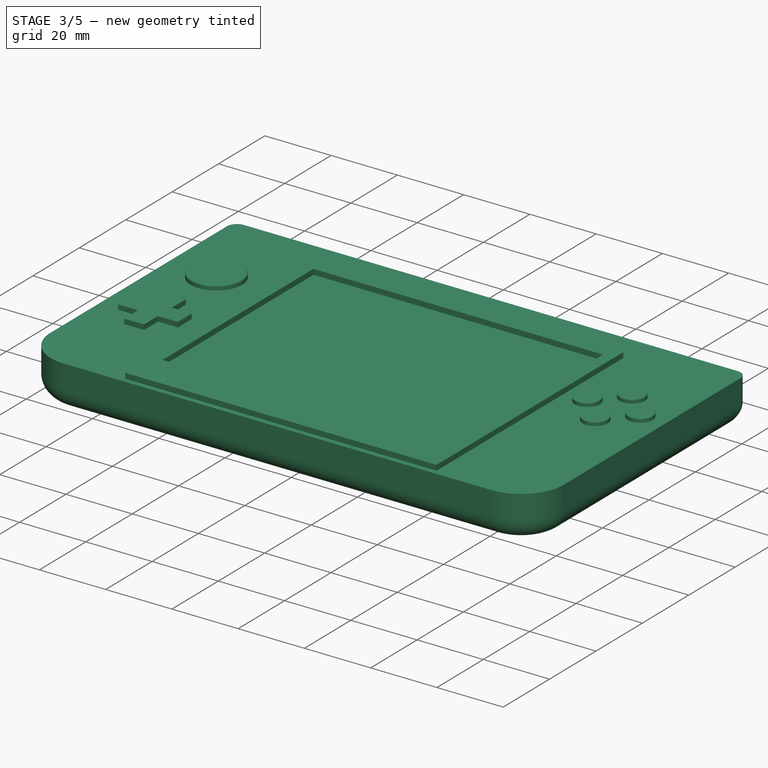
[diagram: stage 3 of 5 — iso view after this stage's code; geometry added in this stage tinted green]
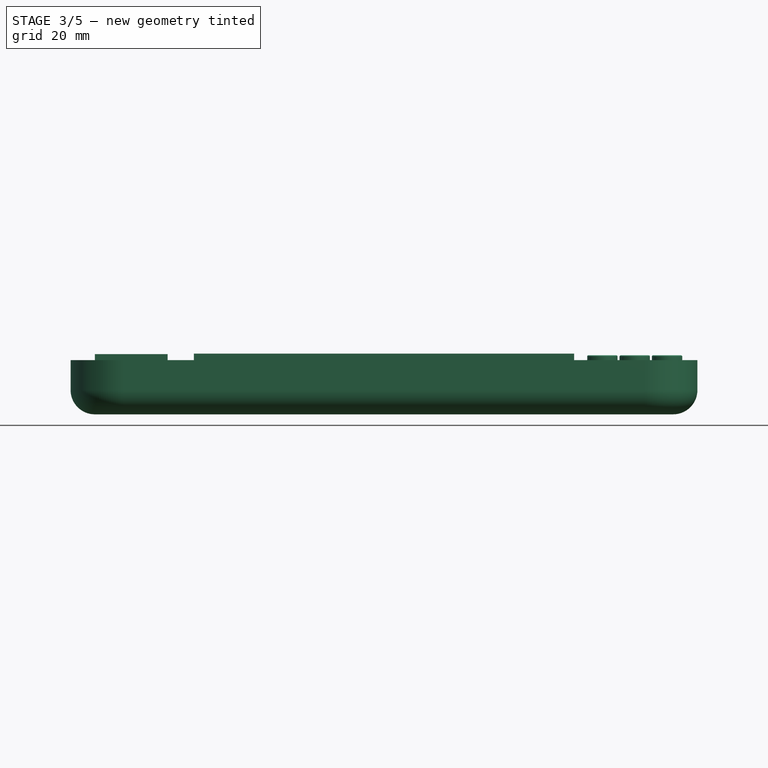
[diagram: stage 3 of 5 — front view after this stage's code; geometry added in this stage tinted green]
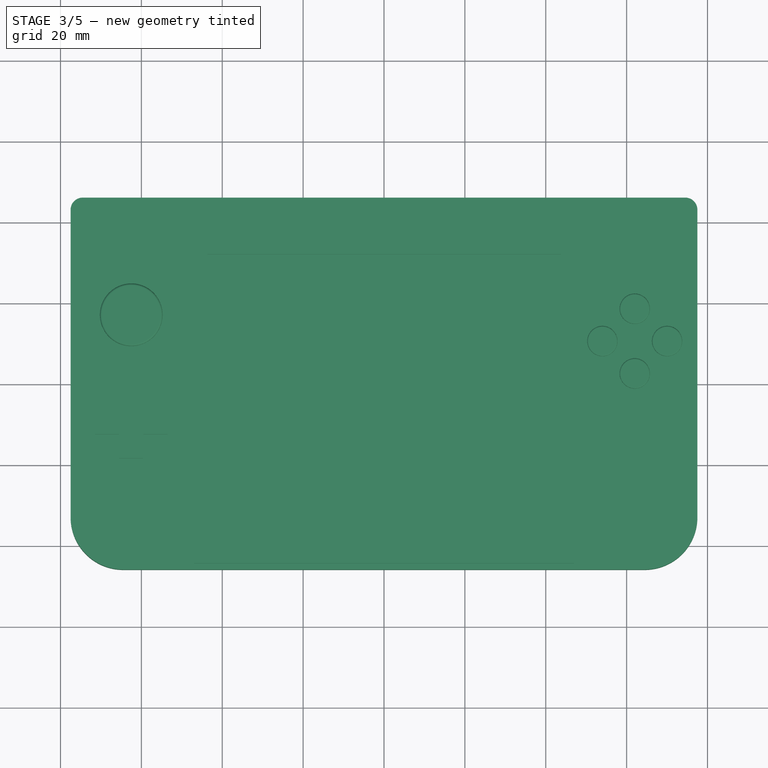
[diagram: stage 3 of 5 — top view after this stage's code; geometry added in this stage tinted green]
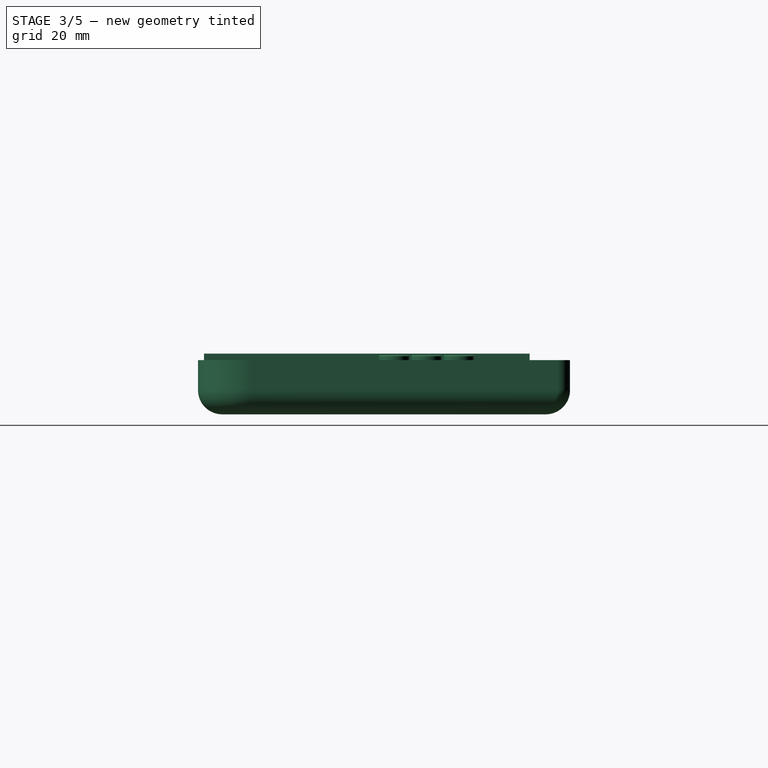
[diagram: stage 3 of 5 — right view after this stage's code; geometry added in this stage tinted green]
FEATURE [Sketcher::SketchObject] Sketch
  FullyConstrained = true
  MapMode = 5
  Support = -> [XY_Plane]
  sketch-geometry (32):
    g0: LineSegment StartX=-77.5 StartY=46 StartZ=0 EndX=-77.5 EndY=-46 EndZ=0
    g1: LineSegment StartX=-77.5 StartY=-46 StartZ=0 EndX=77.5 EndY=-46 EndZ=0
    g2: LineSegment StartX=77.5 StartY=-46 StartZ=0 EndX=77.5 EndY=46 EndZ=0
    g3: LineSegment StartX=77.5 StartY=46 StartZ=0 EndX=-77.5 EndY=46 EndZ=0
    g4: GeomPoint X=0 Y=0 Z=0
    g5: LineSegment StartX=0 StartY=-46 StartZ=0 EndX=0 EndY=-44.5 EndZ=0
    g6: LineSegment StartX=0 StartY=46 StartZ=0 EndX=0 EndY=36 EndZ=0
    g7: LineSegment StartX=-77.5 StartY=36 StartZ=0 EndX=77.5 EndY=36 EndZ=0
    g8: LineSegment StartX=-47 StartY=36 StartZ=0 EndX=-47 EndY=-44.5 EndZ=0
    g9: LineSegment StartX=-47 StartY=-44.5 StartZ=0 EndX=47 EndY=-44.5 EndZ=0
    g10: LineSegment StartX=47 StartY=-44.5 StartZ=0 EndX=47 EndY=36 EndZ=0
    g11: LineSegment StartX=47 StartY=36 StartZ=0 EndX=-47 EndY=36 EndZ=0
    g12: GeomPoint X=0 Y=-4.25 Z=0
    g13: LineSegment StartX=0 StartY=36 StartZ=0 EndX=0 EndY=32 EndZ=0
    g14: LineSegment StartX=-43.7 StartY=-33 StartZ=0 EndX=-43.7 EndY=32 EndZ=0
    g15: LineSegment StartX=-43.7 StartY=32 StartZ=0 EndX=43.7 EndY=32 EndZ=0
    g16: LineSegment StartX=43.7 StartY=32 StartZ=0 EndX=43.7 EndY=-33 EndZ=0
    g17: LineSegment StartX=43.7 StartY=-33 StartZ=0 EndX=-43.7 EndY=-33 EndZ=0
    g18: GeomPoint X=0 Y=-0.5 Z=0
    g19: LineSegment StartX=43.7 StartY=0 StartZ=0 EndX=47 EndY=0 EndZ=0
    g20: LineSegment StartX=0 StartY=-44.5 StartZ=0 EndX=0 EndY=-38.9 EndZ=0
    g21: LineSegment StartX=40 StartY=-44.5 StartZ=0 EndX=40 EndY=-38.9 EndZ=0
    g22: LineSegment StartX=40 StartY=-38.9 StartZ=0 EndX=-40 EndY=-38.9 EndZ=0
    g23: LineSegment StartX=-40 StartY=-38.9 StartZ=0 EndX=-40 EndY=-44.5 EndZ=0
    g24: LineSegment StartX=-40 StartY=-44.5 StartZ=0 EndX=40 EndY=-44.5 EndZ=0
    g25: GeomPoint X=0 Y=-41.7 Z=0
    g26: LineSegment StartX=14.5 StartY=-44.5 StartZ=0 EndX=14.5 EndY=-38.9 EndZ=0
    g27: LineSegment StartX=14.5 StartY=-38.9 StartZ=0 EndX=-14.5 EndY=-38.9 EndZ=0
    g28: LineSegment StartX=-14.5 StartY=-38.9 StartZ=0 EndX=-14.5 EndY=-44.5 EndZ=0
    g29: LineSegment StartX=-14.5 StartY=-44.5 StartZ=0 EndX=14.5 EndY=-44.5 EndZ=0
    g30: GeomPoint X=0 Y=-41.7 Z=0
    g31: LineSegment StartX=-47 StartY=36 StartZ=0 EndX=47 EndY=36 EndZ=0
  constraints (87):
    c: Coincident(g0,g1)
    c: Coincident(g1,g2)
    c: Coincident(g2,g3)
    c: Coincident(g3,g0)
    c: Horizontal(g1)
    c: Horizontal(g3)
    c: Vertical(g0)
    c: Vertical(g2)
    c: Symmetric(g1,g0,g4)
    c: Coincident(g4,g-1)
    c: Distance(g1) = 155
    c: Distance(g2) = 92
    c: PointOnObject(g5,g1)
    c: PointOnObject(g5,g-2)
    c: Vertical(g5)
    c: Distance(g5) = 1.5
    c: PointOnObject(g6,g3)
    c: PointOnObject(g6,g-2)
    c: Vertical(g6)
    c: Distance(g6) = 10
    c: PointOnObject(g7,g0)
    c: PointOnObject(g7,g2)
    c: Horizontal(g7)
    c: PointOnObject(g6,g7)
    c: Coincident(g8,g9)
    c: Coincident(g9,g10)
    c: Coincident(g10,g11)
    c: Coincident(g11,g8)
    c: Horizontal(g9)
    c: Horizontal(g11)
    c: Vertical(g8)
    c: Vertical(g10)
    c: Symmetric(g9,g8,g12)
    c: PointOnObject(g12,g-2)
    c: PointOnObject(g6,g11)
    c: PointOnObject(g5,g9)
    c: Distance(g9) = 94
    c: Coincident(g13,g6)
    c: PointOnObject(g13,g-2)
    c: Distance(g13) = 4
    c: Coincident(g14,g15)
    c: Coincident(g15,g16)
    c: Coincident(g16,g17)
    c: Coincident(g17,g14)
    c: Horizontal(g15)
    c: Horizontal(g17)
    c: Vertical(g14)
    c: Vertical(g16)
    c: Symmetric(g15,g14,g18)
    c: PointOnObject(g18,g-2)
    c: PointOnObject(g13,g15)
    c: PointOnObject(g19,g16)
    c: PointOnObject(g19,g10)
    c: Horizontal(g19)
    c: Distance(g19) = 3.3
    c: Distance(g14) = 65
    c: Coincident(g20,g5)
    c: PointOnObject(g20,g-2)
    c: Distance(g20) = 5.6
    c: Coincident(g21,g22)
    c: Coincident(g22,g23)
    c: Coincident(g23,g24)
    c: Coincident(g24,g21)
    c: Horizontal(g22)
    c: Horizontal(g24)
    c: Vertical(g21)
    c: Vertical(g23)
    c: Symmetric(g22,g21,g25)
    c: PointOnObject(g25,g20)
    c: PointOnObject(g20,g22)
    c: PointOnObject(g5,g24)
    c: Distance(g22) = 80
    c: Coincident(g26,g27)
    c: Coincident(g27,g28)
    c: Coincident(g28,g29)
    c: Coincident(g29,g26)
    c: Horizontal(g27)
    c: Horizontal(g29)
    c: Vertical(g26)
    c: Vertical(g28)
    c: Symmetric(g27,g26,g30)
    c: Coincident(g30,g25)
    c: Distance(g27) = 29
    c: PointOnObject(g20,g27)
    c: PointOnObject(g19,g-1)
    c: Coincident(g31,g8)
    c: Coincident(g31,g10)
FEATURE [PartDesign::Body] Body  label="OG"
  Group = -> [Sketch]
  Origin = -> Origin
FEATURE [Sketcher::SketchObject] Sketch001
  FullyConstrained = true
  MapMode = 5
  Support = -> [XY_Plane002]
  sketch-geometry (32):
    g0: LineSegment StartX=-77.5 StartY=46 StartZ=0 EndX=-77.5 EndY=-46 EndZ=0
    g1: LineSegment StartX=-77.5 StartY=-46 StartZ=0 EndX=77.5 EndY=-46 EndZ=0
    g2: LineSegment StartX=77.5 StartY=-46 StartZ=0 EndX=77.5 EndY=46 EndZ=0
    g3: LineSegment StartX=77.5 StartY=46 StartZ=0 EndX=-77.5 EndY=46 EndZ=0
    g4: GeomPoint X=0 Y=0 Z=0
    g5: LineSegment StartX=0 StartY=-46 StartZ=0 EndX=0 EndY=-44.5 EndZ=0
    g6: LineSegment StartX=0 StartY=46 StartZ=0 EndX=0 EndY=36 EndZ=0
    g7: LineSegment StartX=-77.5 StartY=36 StartZ=0 EndX=77.5 EndY=36 EndZ=0
    g8: LineSegment StartX=-47 StartY=36 StartZ=0 EndX=-47 EndY=-44.5 EndZ=0
    g9: LineSegment StartX=-47 StartY=-44.5 StartZ=0 EndX=47 EndY=-44.5 EndZ=0
    g10: LineSegment StartX=47 StartY=-44.5 StartZ=0 EndX=47 EndY=36 EndZ=0
    g11: LineSegment StartX=47 StartY=36 StartZ=0 EndX=-47 EndY=36 EndZ=0
    g12: GeomPoint X=0 Y=-4.25 Z=0
    g13: LineSegment StartX=0 StartY=36 StartZ=0 EndX=0 EndY=32 EndZ=0
    g14: LineSegment StartX=-43.7 StartY=-33 StartZ=0 EndX=-43.7 EndY=32 EndZ=0
    g15: LineSegment StartX=-43.7 StartY=32 StartZ=0 EndX=43.7 EndY=32 EndZ=0
    g16: LineSegment StartX=43.7 StartY=32 StartZ=0 EndX=43.7 EndY=-33 EndZ=0
    g17: LineSegment StartX=43.7 StartY=-33 StartZ=0 EndX=-43.7 EndY=-33 EndZ=0
    g18: GeomPoint X=0 Y=-0.5 Z=0
    g19: LineSegment StartX=43.7 StartY=0 StartZ=0 EndX=47 EndY=0 EndZ=0
    g20: LineSegment StartX=0 StartY=-44.5 StartZ=0 EndX=0 EndY=-38.9 EndZ=0
    g21: LineSegment StartX=40 StartY=-44.5 StartZ=0 EndX=40 EndY=-38.9 EndZ=0
    g22: LineSegment StartX=40 StartY=-38.9 StartZ=0 EndX=-40 EndY=-38.9 EndZ=0
    g23: LineSegment StartX=-40 StartY=-38.9 StartZ=0 EndX=-40 EndY=-44.5 EndZ=0
    g24: LineSegment StartX=-40 StartY=-44.5 StartZ=0 EndX=40 EndY=-44.5 EndZ=0
    g25: GeomPoint X=0 Y=-41.7 Z=0
    g26: LineSegment StartX=14.5 StartY=-44.5 StartZ=0 EndX=14.5 EndY=-38.9 EndZ=0
    g27: LineSegment StartX=14.5 StartY=-38.9 StartZ=0 EndX=-14.5 EndY=-38.9 EndZ=0
    g28: LineSegment StartX=-14.5 StartY=-38.9 StartZ=0 EndX=-14.5 EndY=-44.5 EndZ=0
    g29: LineSegment StartX=-14.5 StartY=-44.5 StartZ=0 EndX=14.5 EndY=-44.5 EndZ=0
    g30: GeomPoint X=0 Y=-41.7 Z=0
    g31: LineSegment StartX=-47 StartY=36 StartZ=0 EndX=47 EndY=36 EndZ=0
  constraints (87):
    c: Coincident(g0,g1)
    c: Coincident(g1,g2)
    c: Coincident(g2,g3)
    c: Coincident(g3,g0)
    c: Horizontal(g1)
    c: Horizontal(g3)
    c: Vertical(g0)
    c: Vertical(g2)
    c: Symmetric(g1,g0,g4)
    c: Coincident(g4,g-1)
    c: Distance(g1) = 155
    c: Distance(g2) = 92
    c: PointOnObject(g5,g1)
    c: PointOnObject(g5,g-2)
    c: Vertical(g5)
    c: Distance(g5) = 1.5
    c: PointOnObject(g6,g3)
    c: PointOnObject(g6,g-2)
    c: Vertical(g6)
    c: Distance(g6) = 10
    c: PointOnObject(g7,g0)
    c: PointOnObject(g7,g2)
    c: Horizontal(g7)
    c: PointOnObject(g6,g7)
    c: Coincident(g8,g9)
    c: Coincident(g9,g10)
    c: Coincident(g10,g11)
    c: Coincident(g11,g8)
    c: Horizontal(g9)
    c: Horizontal(g11)
    c: Vertical(g8)
    c: Vertical(g10)
    c: Symmetric(g9,g8,g12)
    c: PointOnObject(g12,g-2)
    c: PointOnObject(g6,g11)
    c: PointOnObject(g5,g9)
    c: Distance(g9) = 94
    c: Coincident(g13,g6)
    c: PointOnObject(g13,g-2)
    c: Distance(g13) = 4
    c: Coincident(g14,g15)
    c: Coincident(g15,g16)
    c: Coincident(g16,g17)
    c: Coincident(g17,g14)
    c: Horizontal(g15)
    c: Horizontal(g17)
    c: Vertical(g14)
    c: Vertical(g16)
    c: Symmetric(g15,g14,g18)
    c: PointOnObject(g18,g-2)
    c: PointOnObject(g13,g15)
    c: PointOnObject(g19,g16)
    c: PointOnObject(g19,g10)
    c: Horizontal(g19)
    c: Distance(g19) = 3.3
    c: Distance(g14) = 65
    c: Coincident(g20,g5)
    c: PointOnObject(g20,g-2)
    c: Distance(g20) = 5.6
    c: Coincident(g21,g22)
    c: Coincident(g22,g23)
    c: Coincident(g23,g24)
    c: Coincident(g24,g21)
    c: Horizontal(g22)
    c: Horizontal(g24)
    c: Vertical(g21)
    c: Vertical(g23)
    c: Symmetric(g22,g21,g25)
    c: PointOnObject(g25,g20)
    c: PointOnObject(g20,g22)
    c: PointOnObject(g5,g24)
    c: Distance(g22) = 80
    c: Coincident(g26,g27)
    c: Coincident(g27,g28)
    c: Coincident(g28,g29)
    c: Coincident(g29,g26)
    c: Horizontal(g27)
    c: Horizontal(g29)
    c: Vertical(g26)
    c: Vertical(g28)
    c: Symmetric(g27,g26,g30)
    c: Coincident(g30,g25)
    c: Distance(g27) = 29
    c: PointOnObject(g20,g27)
    c: PointOnObject(g19,g-1)
    c: Coincident(g31,g8)
    c: Coincident(g31,g10)
FEATURE [Sketcher::SketchObject] Sketch004
  FullyConstrained = true
  MapMode = 5
  Support = -> [XY_Plane005]
  sketch-geometry (43):
    g0: LineSegment StartX=-77.5 StartY=46 StartZ=0 EndX=-77.5 EndY=-46 EndZ=0
    g1: LineSegment StartX=-77.5 StartY=-46 StartZ=0 EndX=77.5 EndY=-46 EndZ=0
    g2: LineSegment StartX=77.5 StartY=-46 StartZ=0 EndX=77.5 EndY=46 EndZ=0
    g3: LineSegment StartX=77.5 StartY=46 StartZ=0 EndX=-77.5 EndY=46 EndZ=0
    g4: GeomPoint X=0 Y=0 Z=0
    g5: LineSegment StartX=0 StartY=-46 StartZ=0 EndX=0 EndY=-44.5 EndZ=0
    g6: LineSegment StartX=0 StartY=46 StartZ=0 EndX=0 EndY=36 EndZ=0
    g7: LineSegment StartX=-77.5 StartY=36 StartZ=0 EndX=77.5 EndY=36 EndZ=0
    g8: LineSegment StartX=-47 StartY=36 StartZ=0 EndX=-47 EndY=-44.5 EndZ=0
    g9: LineSegment StartX=-47 StartY=-44.5 StartZ=0 EndX=47 EndY=-44.5 EndZ=0
    g10: LineSegment StartX=47 StartY=-44.5 StartZ=0 EndX=47 EndY=36 EndZ=0
    g11: LineSegment StartX=47 StartY=36 StartZ=0 EndX=-47 EndY=36 EndZ=0
    g12: GeomPoint X=0 Y=-4.25 Z=0
    g13: LineSegment StartX=0 StartY=36 StartZ=0 EndX=0 EndY=32 EndZ=0
    g14: LineSegment StartX=-43.7 StartY=-33 StartZ=0 EndX=-43.7 EndY=32 EndZ=0
    g15: LineSegment StartX=-43.7 StartY=32 StartZ=0 EndX=43.7 EndY=32 EndZ=0
    g16: LineSegment StartX=43.7 StartY=32 StartZ=0 EndX=43.7 EndY=-33 EndZ=0
    g17: LineSegment StartX=43.7 StartY=-33 StartZ=0 EndX=-43.7 EndY=-33 EndZ=0
    g18: GeomPoint X=0 Y=-0.5 Z=0
    g19: LineSegment StartX=43.7 StartY=0 StartZ=0 EndX=47 EndY=0 EndZ=0
    g20: LineSegment StartX=0 StartY=-44.5 StartZ=0 EndX=0 EndY=-38.9 EndZ=0
    g21: LineSegment StartX=40 StartY=-44.5 StartZ=0 EndX=40 EndY=-38.9 EndZ=0
    g22: LineSegment StartX=40 StartY=-38.9 StartZ=0 EndX=-40 EndY=-38.9 EndZ=0
    g23: LineSegment StartX=-40 StartY=-38.9 StartZ=0 EndX=-40 EndY=-44.5 EndZ=0
    g24: LineSegment StartX=-40 StartY=-44.5 StartZ=0 EndX=40 EndY=-44.5 EndZ=0
    g25: GeomPoint X=0 Y=-41.7 Z=0
    g26: LineSegment StartX=14.5 StartY=-44.5 StartZ=0 EndX=14.5 EndY=-38.9 EndZ=0
    g27: LineSegment StartX=14.5 StartY=-38.9 StartZ=0 EndX=-14.5 EndY=-38.9 EndZ=0
    g28: LineSegment StartX=-14.5 StartY=-38.9 StartZ=0 EndX=-14.5 EndY=-44.5 EndZ=0
    g29: LineSegment StartX=-14.5 StartY=-44.5 StartZ=0 EndX=14.5 EndY=-44.5 EndZ=0
    g30: GeomPoint X=0 Y=-41.7 Z=0
    g31: LineSegment StartX=-47 StartY=36 StartZ=0 EndX=47 EndY=36 EndZ=0
    g32: LineSegment StartX=77.5 StartY=36 StartZ=0 EndX=62 EndY=36 EndZ=0
    g33: LineSegment StartX=62 StartY=36 StartZ=0 EndX=62 EndY=10.5 EndZ=0
    g34: LineSegment StartX=62 StartY=10.5 StartZ=0 EndX=77.5 EndY=10.5 EndZ=0
    g35: LineSegment StartX=77.5 StartY=10.5 StartZ=0 EndX=77.5 EndY=36 EndZ=0
    g36: LineSegment StartX=62 StartY=10.5 StartZ=0 EndX=62 EndY=2.5 EndZ=0
    g37: Circle CenterX=62 CenterY=2.5 CenterZ=0 NormalX=0 NormalY=0 NormalZ=1 AngleXU=0 Radius=3.75
    g38: LineSegment StartX=62 StartY=2.5 StartZ=0 EndX=70 EndY=10.5 EndZ=0
    g39: LineSegment StartX=70 StartY=10.5 StartZ=0 EndX=62 EndY=18.5 EndZ=0
    g40: LineSegment StartX=62 StartY=18.5 StartZ=0 EndX=54 EndY=10.5 EndZ=0
    g41: LineSegment StartX=54 StartY=10.5 StartZ=0 EndX=62 EndY=2.5 EndZ=0
    g42: Circle CenterX=62 CenterY=10.5 CenterZ=0 NormalX=0 NormalY=0 NormalZ=1 AngleXU=0 Radius=8
  constraints (116):
    c: Coincident(g0,g1)
    c: Coincident(g1,g2)
    c: Coincident(g2,g3)
    c: Coincident(g3,g0)
    c: Horizontal(g1)
    c: Horizontal(g3)
    c: Vertical(g0)
    c: Vertical(g2)
    c: Symmetric(g1,g0,g4)
    c: Coincident(g4,g-1)
    c: Distance(g1) = 155
    c: Distance(g2) = 92
    c: PointOnObject(g5,g1)
    c: PointOnObject(g5,g-2)
    c: Vertical(g5)
    c: Distance(g5) = 1.5
    c: PointOnObject(g6,g3)
    c: PointOnObject(g6,g-2)
    c: Vertical(g6)
    c: Distance(g6) = 10
    c: PointOnObject(g7,g0)
    c: PointOnObject(g7,g2)
    c: Horizontal(g7)
    c: PointOnObject(g6,g7)
    c: Coincident(g8,g9)
    c: Coincident(g9,g10)
    c: Coincident(g10,g11)
    c: Coincident(g11,g8)
    c: Horizontal(g9)
    c: Horizontal(g11)
    c: Vertical(g8)
    c: Vertical(g10)
    c: Symmetric(g9,g8,g12)
    c: PointOnObject(g12,g-2)
    c: PointOnObject(g6,g11)
    c: PointOnObject(g5,g9)
    c: Distance(g9) = 94
    c: Coincident(g13,g6)
    c: PointOnObject(g13,g-2)
    c: Distance(g13) = 4
    c: Coincident(g14,g15)
    c: Coincident(g15,g16)
    c: Coincident(g16,g17)
    c: Coincident(g17,g14)
    c: Horizontal(g15)
    c: Horizontal(g17)
    c: Vertical(g14)
    c: Vertical(g16)
    c: Symmetric(g15,g14,g18)
    c: PointOnObject(g18,g-2)
    c: PointOnObject(g13,g15)
    c: PointOnObject(g19,g16)
    c: PointOnObject(g19,g10)
    c: Horizontal(g19)
    c: Distance(g19) = 3.3
    c: Distance(g14) = 65
    c: Coincident(g20,g5)
    c: PointOnObject(g20,g-2)
    c: Distance(g20) = 5.6
    c: Coincident(g21,g22)
    c: Coincident(g22,g23)
    c: Coincident(g23,g24)
    c: Coincident(g24,g21)
    c: Horizontal(g22)
    c: Horizontal(g24)
    c: Vertical(g21)
    c: Vertical(g23)
    c: Symmetric(g22,g21,g25)
    c: PointOnObject(g25,g20)
    c: PointOnObject(g20,g22)
    c: PointOnObject(g5,g24)
    c: Distance(g22) = 80
    c: Coincident(g26,g27)
    c: Coincident(g27,g28)
    c: Coincident(g28,g29)
    c: Coincident(g29,g26)
    c: Horizontal(g27)
    c: Horizontal(g29)
    c: Vertical(g26)
    c: Vertical(g28)
    c: Symmetric(g27,g26,g30)
    c: Coincident(g30,g25)
    c: Distance(g27) = 29
    c: PointOnObject(g20,g27)
    c: PointOnObject(g19,g-1)
    c: Coincident(g31,g8)
    c: Coincident(g31,g10)
    c: Coincident(g32,g33)
    c: Coincident(g33,g34)
    c: Coincident(g34,g35)
    c: Coincident(g35,g32)
    c: Horizontal(g32)
    c: Horizontal(g34)
    c: Vertical(g33)
    c: Vertical(g35)
    c: Coincident(g32,g7)
    c: Distance(g33) = 25.5
    c: Distance(g34) = 15.5
    c: Coincident(g36,g33)
    c: Vertical(g36)
    c: Distance(g36) = 8
    c: Coincident(g37,g36)
    c: Coincident(g38,g39)
    c: Coincident(g39,g40)
    c: Coincident(g40,g41)
    c: Coincident(g41,g38)
    c: Equal(g38,g39)
    c: Equal(g38,g40)
    c: Equal(g38,g41)
    c: PointOnObject(g38,g42)
    c: PointOnObject(g39,g42)
    c: PointOnObject(g40,g42)
    c: PointOnObject(g41,g42)
    c: Coincident(g42,g33)
    c: Coincident(g41,g37)
    c: Diameter(g37) = 7.5
FEATURE [PartDesign::Pad] Pad
  Direction = (0,0,1)
  Length = 13.4
  Length2 = 10
  Profile = -> Sketch001
  ReferenceAxis = -> Sketch001 [N_Axis]
  Refine = true
  Type = 0
  expr: Length = Spreadsheet.bottom_height
FEATURE [PartDesign::Fillet] Fillet
  Base = -> Pad [Edge2,Edge5]
  BaseFeature = -> Pad
  Radius = 13
  Refine = true
  SupportTransform = false
  UseAllEdges = false
FEATURE [PartDesign::Fillet] Fillet001
  Base = -> Fillet [Edge3,Edge12]
  BaseFeature = -> Fillet
  Radius = 3
  Refine = true
  SupportTransform = false
  UseAllEdges = false
FEATURE [PartDesign::Fillet] Fillet002
  Base = -> Fillet001 [Edge1,Edge6,Edge8,Edge10,Edge11]
  BaseFeature = -> Fillet001
  Radius = 6
  Refine = true
  SupportTransform = false
  UseAllEdges = false
FEATURE [Sketcher::SketchObject] Sketch002
  FullyConstrained = false
  MapMode = 5
  Support = -> [XY_Plane003]
  sketch-geometry (22):
    g0: LineSegment StartX=-77.5 StartY=46 StartZ=0 EndX=-77.5 EndY=-46 EndZ=0
    g1: LineSegment StartX=-77.5 StartY=-46 StartZ=0 EndX=77.5 EndY=-46 EndZ=0
    g2: LineSegment StartX=77.5 StartY=-46 StartZ=0 EndX=77.5 EndY=46 EndZ=0
    g3: LineSegment StartX=77.5 StartY=46 StartZ=0 EndX=-77.5 EndY=46 EndZ=0
    g4: GeomPoint X=0 Y=0 Z=0
    g5: LineSegment StartX=0 StartY=-46 StartZ=0 EndX=0 EndY=-44.5 EndZ=0
    g6: LineSegment StartX=0 StartY=46 StartZ=0 EndX=0 EndY=36 EndZ=0
    g7: LineSegment StartX=-77.5 StartY=36 StartZ=0 EndX=77.5 EndY=36 EndZ=0
    g8: LineSegment StartX=-47 StartY=36 StartZ=0 EndX=-47 EndY=-44.5 EndZ=0
    g9: LineSegment StartX=-47 StartY=-44.5 StartZ=0 EndX=47 EndY=-44.5 EndZ=0
    g10: LineSegment StartX=47 StartY=-44.5 StartZ=0 EndX=47 EndY=36 EndZ=0
    g11: LineSegment StartX=47 StartY=36 StartZ=0 EndX=-47 EndY=36 EndZ=0
    g12: GeomPoint X=0 Y=-4.25 Z=0
    g13: LineSegment StartX=0 StartY=36 StartZ=0 EndX=0 EndY=32 EndZ=0
    g14: LineSegment StartX=-43.7 StartY=-33 StartZ=0 EndX=-43.7 EndY=32 EndZ=0
    g15: LineSegment StartX=-43.7 StartY=32 StartZ=0 EndX=43.7 EndY=32 EndZ=0
    g16: LineSegment StartX=43.7 StartY=32 StartZ=0 EndX=43.7 EndY=-33 EndZ=0
    g17: LineSegment StartX=43.7 StartY=-33 StartZ=0 EndX=-43.7 EndY=-33 EndZ=0
    g18: GeomPoint X=0 Y=-0.5 Z=0
    g19: LineSegment StartX=43.7 StartY=0 StartZ=0 EndX=47 EndY=0 EndZ=0
    g20: LineSegment StartX=-40 StartY=-44.5 StartZ=0 EndX=40 EndY=-44.5 EndZ=0
    g21: LineSegment StartX=-47 StartY=36 StartZ=0 EndX=47 EndY=36 EndZ=0
  constraints (61):
    c: Coincident(g0,g1)
    c: Coincident(g1,g2)
    c: Coincident(g2,g3)
    c: Coincident(g3,g0)
    c: Horizontal(g1)
    c: Horizontal(g3)
    c: Vertical(g0)
    c: Vertical(g2)
    c: Symmetric(g1,g0,g4)
    c: Coincident(g4,g-1)
    c: Distance(g1) = 155
    c: Distance(g2) = 92
    c: PointOnObject(g5,g1)
    c: PointOnObject(g5,g-2)
    c: Vertical(g5)
    c: Distance(g5) = 1.5
    c: PointOnObject(g6,g3)
    c: PointOnObject(g6,g-2)
    c: Vertical(g6)
    c: Distance(g6) = 10
    c: PointOnObject(g7,g0)
    c: PointOnObject(g7,g2)
    c: Horizontal(g7)
    c: PointOnObject(g6,g7)
    c: Coincident(g8,g9)
    c: Coincident(g9,g10)
    c: Coincident(g10,g11)
    c: Coincident(g11,g8)
    c: Horizontal(g9)
    c: Horizontal(g11)
    c: Vertical(g8)
    c: Vertical(g10)
    c: Symmetric(g9,g8,g12)
    c: PointOnObject(g12,g-2)
    c: PointOnObject(g6,g11)
    c: PointOnObject(g5,g9)
    c: Distance(g9) = 94
    c: Coincident(g13,g6)
    c: PointOnObject(g13,g-2)
    c: Distance(g13) = 4
    c: Coincident(g14,g15)
    c: Coincident(g15,g16)
    c: Coincident(g16,g17)
    c: Coincident(g17,g14)
    c: Horizontal(g15)
    c: Horizontal(g17)
    c: Vertical(g14)
    c: Vertical(g16)
    c: Symmetric(g15,g14,g18)
    c: PointOnObject(g18,g-2)
    c: PointOnObject(g13,g15)
    c: PointOnObject(g19,g16)
    c: PointOnObject(g19,g10)
    c: Horizontal(g19)
    c: Distance(g19) = 3.3
    c: Distance(g14) = 65
    c: Horizontal(g20)
    c: PointOnObject(g5,g20)
    c: PointOnObject(g19,g-1)
    c: Coincident(g21,g8)
    c: Coincident(g21,g10)
FEATURE [PartDesign::Pad] Pad001
  Direction = (0,0,1)
  Length = 1.6
  Length2 = 10
  Profile = -> Sketch002
  ReferenceAxis = -> Sketch002 [N_Axis]
  Refine = true
  Type = 0
FEATURE [PartDesign::Body] Body010  label="hinge_bottom_L"
  Group = -> [Sketch010,Pad008,Fillet008]
  Origin = -> Origin011
  Placement = pos=(0,0,13.4) rot=(0,0,1;0rad)
  Tip = -> Fillet008
  expr: .Placement.Base.z = Spreadsheet.bottom_height
FEATURE [PartDesign::Boolean] Boolean
  BaseFeature = -> Fillet002
  Group = -> [Body005,Body006,Body004,Body007,Body008,Body009,Body002]
  Refine = true
  Type = 0
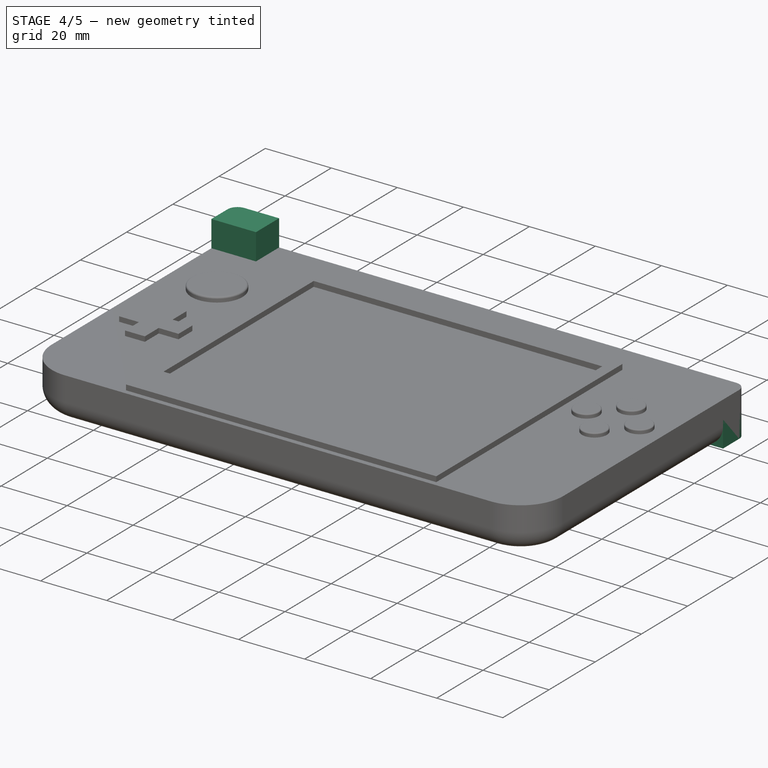
[diagram: stage 4 of 5 — iso view after this stage's code; geometry added in this stage tinted green]
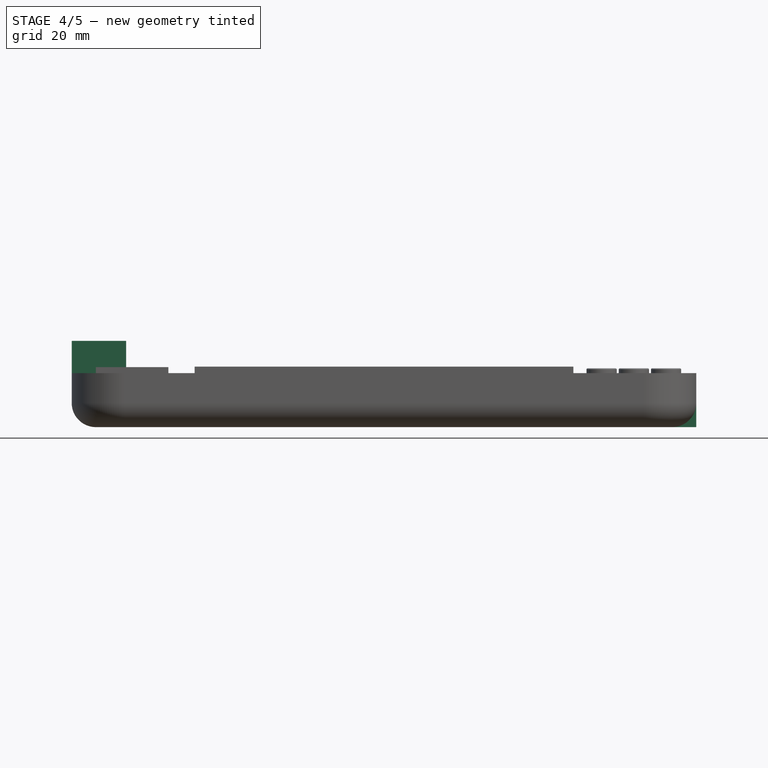
[diagram: stage 4 of 5 — front view after this stage's code; geometry added in this stage tinted green]
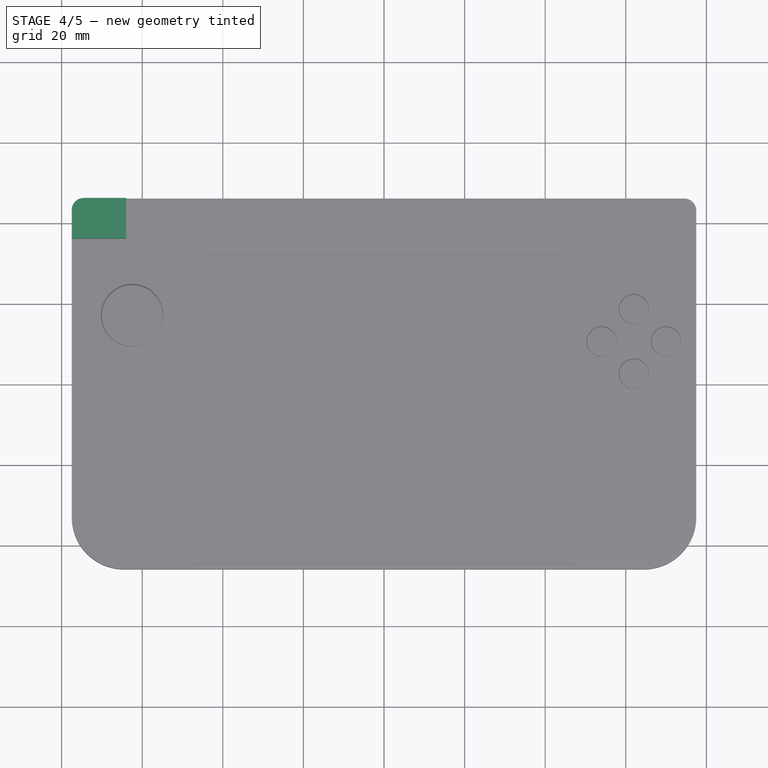
[diagram: stage 4 of 5 — top view after this stage's code; geometry added in this stage tinted green]
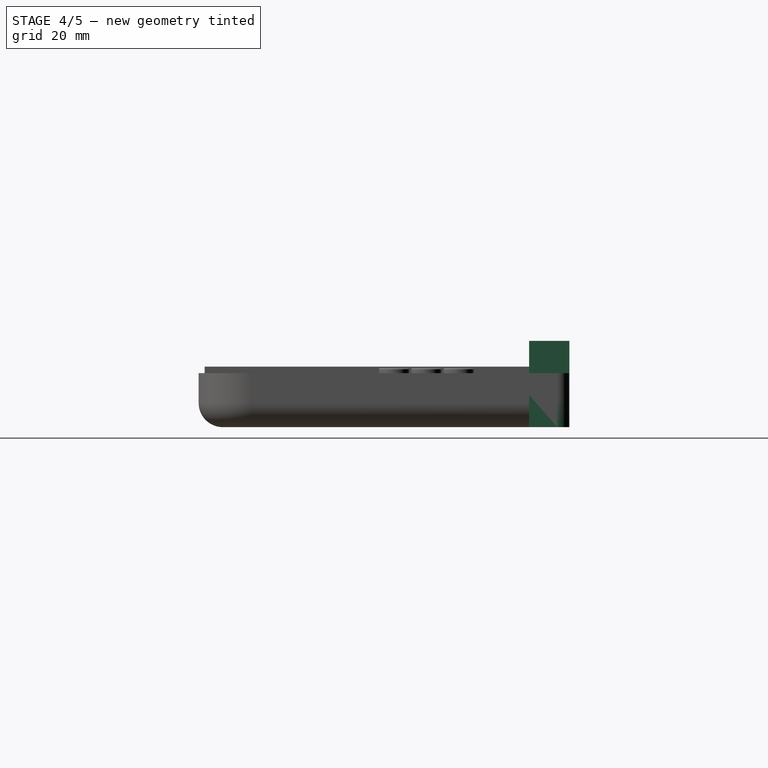
[diagram: stage 4 of 5 — right view after this stage's code; geometry added in this stage tinted green]
FEATURE [PartDesign::Body] Body009  label="buttonsA"
  Group = -> [Sketch009,Pad005,Fillet007]
  Origin = -> Origin010
  Placement = pos=(0,0,13.4) rot=(0,0,1;0rad)
  Tip = -> Fillet007
  expr: .Placement.Base.z = Spreadsheet.bottom_height
FEATURE [Part::Plane] Plane
  AttacherType = Attacher::AttachEngine3D
  Length = 160
  Placement = pos=(-81,-57,13.4) rot=(0,0,1;0rad)
  Width = 110
  expr: .Placement.Base.z = Spreadsheet.bottom_height
FEATURE [PartDesign::Pad] Pad008
  Direction = (0,0,1)
  Length = 8
  Length2 = 10
  Profile = -> Sketch010
  ReferenceAxis = -> Sketch010 [N_Axis]
  Refine = true
  Type = 0
FEATURE [PartDesign::Fillet] Fillet008
  Base = -> Pad008 [Edge1]
  BaseFeature = -> Pad008
  Radius = 3
  Refine = true
  SupportTransform = false
  UseAllEdges = false
FEATURE [Sketcher::SketchObject] Sketch013
  FullyConstrained = true
  MapMode = 5
  Support = -> [XY_Plane014]
  sketch-geometry (40):
    g0: LineSegment StartX=-77.5 StartY=46 StartZ=0 EndX=-77.5 EndY=-46 EndZ=0
    g1: LineSegment StartX=-77.5 StartY=-46 StartZ=0 EndX=77.5 EndY=-46 EndZ=0
    g2: LineSegment StartX=77.5 StartY=-46 StartZ=0 EndX=77.5 EndY=46 EndZ=0
    g3: LineSegment StartX=77.5 StartY=46 StartZ=0 EndX=-77.5 EndY=46 EndZ=0
    g4: GeomPoint X=0 Y=0 Z=0
    g5: LineSegment StartX=0 StartY=-46 StartZ=0 EndX=0 EndY=-44.5 EndZ=0
    g6: LineSegment StartX=0 StartY=46 StartZ=0 EndX=0 EndY=36 EndZ=0
    g7: LineSegment StartX=-77.5 StartY=36 StartZ=0 EndX=77.5 EndY=36 EndZ=0
    g8: LineSegment StartX=-47 StartY=36 StartZ=0 EndX=-47 EndY=-44.5 EndZ=0
    g9: LineSegment StartX=-47 StartY=-44.5 StartZ=0 EndX=47 EndY=-44.5 EndZ=0
    g10: LineSegment StartX=47 StartY=-44.5 StartZ=0 EndX=47 EndY=36 EndZ=0
    g11: LineSegment StartX=47 StartY=36 StartZ=0 EndX=-47 EndY=36 EndZ=0
    g12: GeomPoint X=0 Y=-4.25 Z=0
    g13: LineSegment StartX=0 StartY=36 StartZ=0 EndX=0 EndY=32 EndZ=0
    g14: LineSegment StartX=-43.7 StartY=-33 StartZ=0 EndX=-43.7 EndY=32 EndZ=0
    g15: LineSegment StartX=-43.7 StartY=32 StartZ=0 EndX=43.7 EndY=32 EndZ=0
    g16: LineSegment StartX=43.7 StartY=32 StartZ=0 EndX=43.7 EndY=-33 EndZ=0
    g17: LineSegment StartX=43.7 StartY=-33 StartZ=0 EndX=-43.7 EndY=-33 EndZ=0
    g18: GeomPoint X=0 Y=-0.5 Z=0
    g19: LineSegment StartX=43.7 StartY=0 StartZ=0 EndX=47 EndY=0 EndZ=0
    g20: LineSegment StartX=0 StartY=-44.5 StartZ=0 EndX=0 EndY=-38.9 EndZ=0
    g21: LineSegment StartX=40 StartY=-44.5 StartZ=0 EndX=40 EndY=-38.9 EndZ=0
    g22: LineSegment StartX=40 StartY=-38.9 StartZ=0 EndX=-40 EndY=-38.9 EndZ=0
    g23: LineSegment StartX=-40 StartY=-38.9 StartZ=0 EndX=-40 EndY=-44.5 EndZ=0
    g24: LineSegment StartX=-40 StartY=-44.5 StartZ=0 EndX=40 EndY=-44.5 EndZ=0
    g25: GeomPoint X=0 Y=-41.7 Z=0
    g26: LineSegment StartX=14.5 StartY=-44.5 StartZ=0 EndX=14.5 EndY=-38.9 EndZ=0
    g27: LineSegment StartX=14.5 StartY=-38.9 StartZ=0 EndX=-14.5 EndY=-38.9 EndZ=0
    g28: LineSegment StartX=-14.5 StartY=-38.9 StartZ=0 EndX=-14.5 EndY=-44.5 EndZ=0
    g29: LineSegment StartX=-14.5 StartY=-44.5 StartZ=0 EndX=14.5 EndY=-44.5 EndZ=0
    g30: GeomPoint X=0 Y=-41.7 Z=0
    g31: LineSegment StartX=-47 StartY=36 StartZ=0 EndX=47 EndY=36 EndZ=0
    g32: LineSegment StartX=-77.5 StartY=46 StartZ=0 EndX=-64 EndY=46 EndZ=0
    g33: LineSegment StartX=-64 StartY=46 StartZ=0 EndX=-64 EndY=36 EndZ=0
    g34: LineSegment StartX=-77.5 StartY=36 StartZ=0 EndX=-77.5 EndY=46 EndZ=0
    g35: LineSegment StartX=-77.5 StartY=36 StartZ=0 EndX=-64 EndY=36 EndZ=0
    g36: LineSegment StartX=77.5 StartY=46 StartZ=0 EndX=64 EndY=46 EndZ=0
    g37: LineSegment StartX=64 StartY=46 StartZ=0 EndX=64 EndY=36 EndZ=0
    g38: LineSegment StartX=64 StartY=36 StartZ=0 EndX=77.5 EndY=36 EndZ=0
    g39: LineSegment StartX=77.5 StartY=36 StartZ=0 EndX=77.5 EndY=46 EndZ=0
  constraints (108):
    c: Coincident(g0,g1)
    c: Coincident(g1,g2)
    c: Coincident(g2,g3)
    c: Coincident(g3,g0)
    c: Horizontal(g1)
    c: Horizontal(g3)
    c: Vertical(g0)
    c: Vertical(g2)
    c: Symmetric(g1,g0,g4)
    c: Coincident(g4,g-1)
    c: Distance(g1) = 155
    c: Distance(g2) = 92
    c: PointOnObject(g5,g1)
    c: PointOnObject(g5,g-2)
    c: Vertical(g5)
    c: Distance(g5) = 1.5
    c: PointOnObject(g6,g3)
    c: PointOnObject(g6,g-2)
    c: Vertical(g6)
    c: Distance(g6) = 10
    c: PointOnObject(g7,g0)
    c: PointOnObject(g7,g2)
    c: Horizontal(g7)
    c: PointOnObject(g6,g7)
    c: Coincident(g8,g9)
    c: Coincident(g9,g10)
    c: Coincident(g10,g11)
    c: Coincident(g11,g8)
    c: Horizontal(g9)
    c: Horizontal(g11)
    c: Vertical(g8)
    c: Vertical(g10)
    c: Symmetric(g9,g8,g12)
    c: PointOnObject(g12,g-2)
    c: PointOnObject(g6,g11)
    c: PointOnObject(g5,g9)
    c: Distance(g9) = 94
    c: Coincident(g13,g6)
    c: PointOnObject(g13,g-2)
    c: Distance(g13) = 4
    c: Coincident(g14,g15)
    c: Coincident(g15,g16)
    c: Coincident(g16,g17)
    c: Coincident(g17,g14)
    c: Horizontal(g15)
    c: Horizontal(g17)
    c: Vertical(g14)
    c: Vertical(g16)
    c: Symmetric(g15,g14,g18)
    c: PointOnObject(g18,g-2)
    c: PointOnObject(g13,g15)
    c: PointOnObject(g19,g16)
    c: PointOnObject(g19,g10)
    c: Horizontal(g19)
    c: Distance(g19) = 3.3
    c: Distance(g14) = 65
    c: Coincident(g20,g5)
    c: PointOnObject(g20,g-2)
    c: Distance(g20) = 5.6
    c: Coincident(g21,g22)
    c: Coincident(g22,g23)
    c: Coincident(g23,g24)
    c: Coincident(g24,g21)
    c: Horizontal(g22)
    c: Horizontal(g24)
    c: Vertical(g21)
    c: Vertical(g23)
    c: Symmetric(g22,g21,g25)
    c: PointOnObject(g25,g20)
    c: PointOnObject(g20,g22)
    c: PointOnObject(g5,g24)
    c: Distance(g22) = 80
    c: Coincident(g26,g27)
    c: Coincident(g27,g28)
    c: Coincident(g28,g29)
    c: Coincident(g29,g26)
    c: Horizontal(g27)
    c: Horizontal(g29)
    c: Vertical(g26)
    c: Vertical(g28)
    c: Symmetric(g27,g26,g30)
    c: Coincident(g30,g25)
    c: Distance(g27) = 29
    c: PointOnObject(g20,g27)
    c: PointOnObject(g19,g-1)
    c: Coincident(g31,g8)
    c: Coincident(g31,g10)
    c: Coincident(g32,g0)
    c: PointOnObject(g32,g3)
    c: Distance(g0,g32) = 13.5
    c: Coincident(g33,g32)
    c: PointOnObject(g33,g7)
    c: Vertical(g33)
    c: Coincident(g34,g7)
    c: Coincident(g34,g32)
    c: Coincident(g35,g34)
    c: Coincident(g35,g33)
    c: Coincident(g36,g37)
    c: Coincident(g37,g38)
    c: Coincident(g38,g39)
    c: Coincident(g39,g36)
    c: Horizontal(g36)
    c: Horizontal(g38)
    c: Vertical(g37)
    c: Vertical(g39)
    c: Coincident(g36,g2)
    c: PointOnObject(g37,g7)
    c: Distance(g36,g36) = 13.5
FEATURE [PartDesign::Pad] Pad009
  Direction = (0,0,1)
  Length = 8
  Length2 = 10
  Profile = -> Sketch013
  ReferenceAxis = -> Sketch013 [N_Axis]
  Refine = true
  Type = 0
FEATURE [PartDesign::Fillet] Fillet009
  Base = -> Pad009 [Edge1]
  BaseFeature = -> Pad009
  Radius = 3
  Refine = true
  SupportTransform = false
  UseAllEdges = false
FEATURE [PartDesign::Body] Body013  label="hinge_bottom_R"
  Group = -> [Sketch013,Pad009,Fillet009,Sketch014,Pad010]
  Origin = -> Origin014
  Placement = pos=(0,0,13.4) rot=(0,0,1;0rad)
  Tip = -> Pad010
  expr: .Placement.Base.z = Spreadsheet.bottom_height
FEATURE [PartDesign::Boolean] Boolean001
  BaseFeature = -> Boolean
  Group = -> [Body010]
  Refine = true
  Type = 0
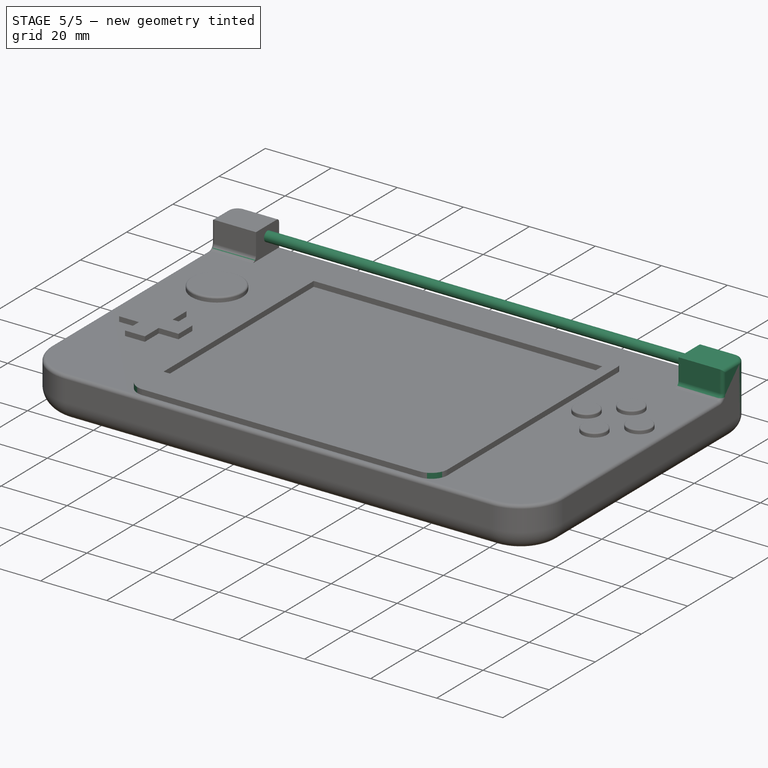
[diagram: stage 5 of 5 — iso view after this stage's code; geometry added in this stage tinted green]
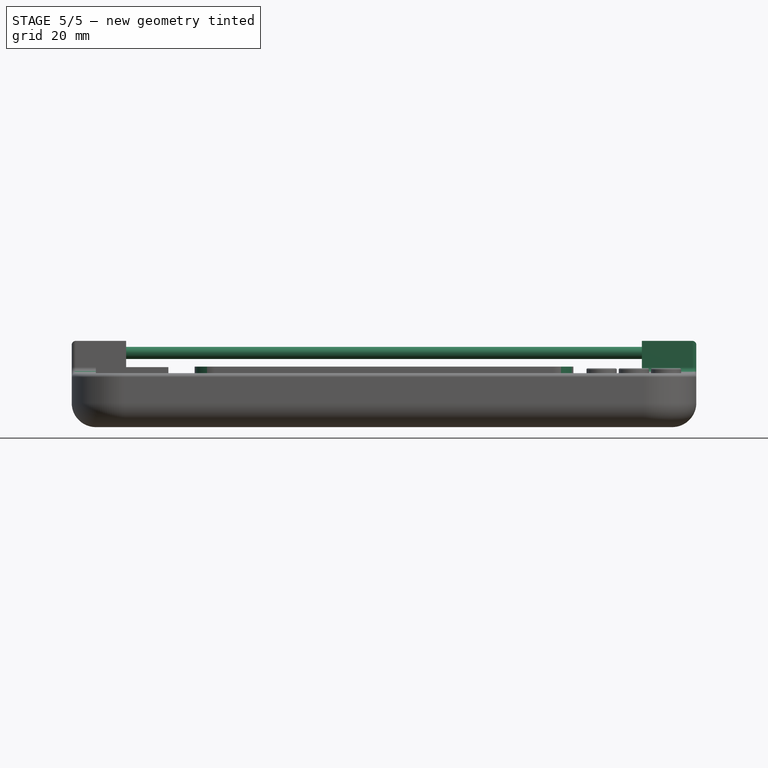
[diagram: stage 5 of 5 — front view after this stage's code; geometry added in this stage tinted green]
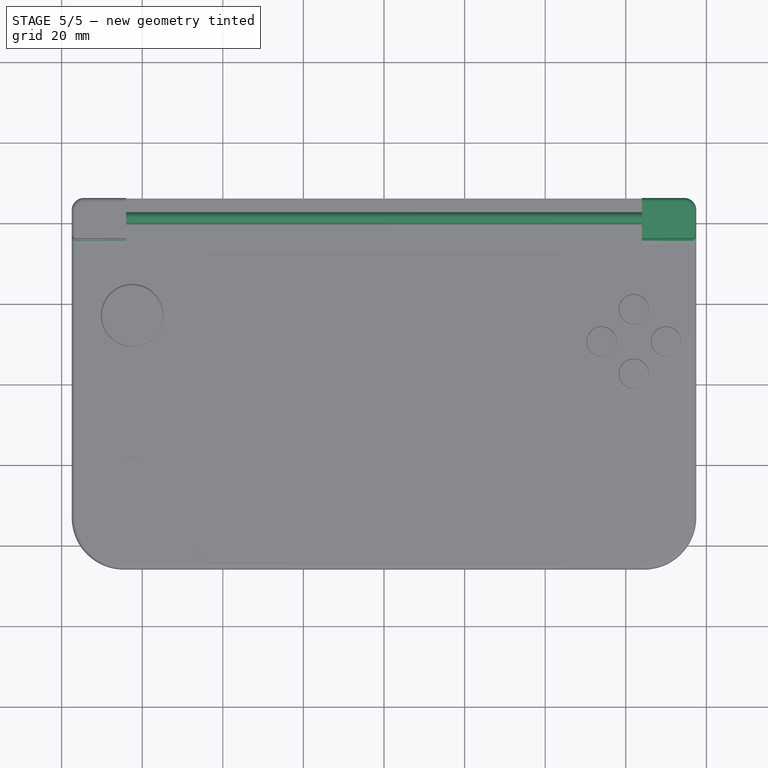
[diagram: stage 5 of 5 — top view after this stage's code; geometry added in this stage tinted green]
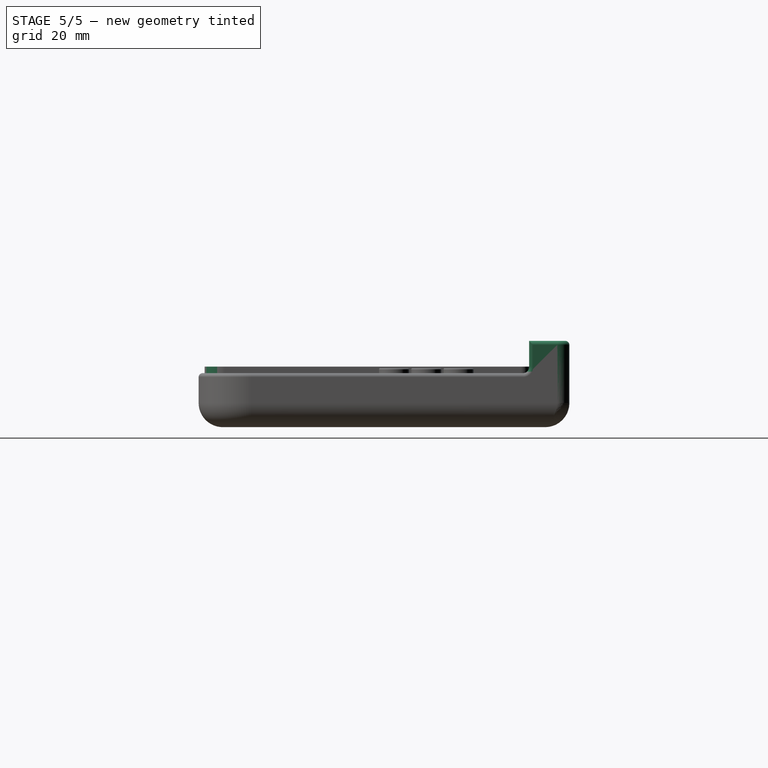
[diagram: stage 5 of 5 — right view after this stage's code; geometry added in this stage tinted green]
FEATURE [Sketcher::SketchObject] Sketch014  label="hole"
  ExternalGeometry = -> [Sketch013,Fillet009]
  FullyConstrained = true
  MapMode = 5
  Placement = pos=(64,0,0) rot=(0.57735,-0.57735,-0.57735;2.0944rad)
  Support = -> [Fillet009]
  sketch-geometry (17):
    g0: Circle CenterX=0 CenterY=0 CenterZ=0 NormalX=0 NormalY=0 NormalZ=1 AngleXU=0 Radius=1.25
    g1: GeomPoint X=-46 Y=8 Z=0
    g2: GeomPoint X=-46 Y=8 Z=0
    g3: GeomPoint X=-36 Y=8 Z=0
    g4: GeomPoint X=-36 Y=8 Z=0
    g5: GeomPoint X=-36 Y=0 Z=0
    g6: GeomPoint X=-36 Y=0 Z=0
    g7: GeomPoint X=-46 Y=0 Z=0
    g8: GeomPoint X=-46 Y=0 Z=0
    g9: GeomPoint X=-41 Y=5 Z=0
    g10: GeomPoint X=-41 Y=5 Z=0
    g11: Circle CenterX=-41 CenterY=5 CenterZ=0 NormalX=0 NormalY=0 NormalZ=1 AngleXU=0 Radius=1.5
    g12: LineSegment StartX=-46 StartY=8 StartZ=0 EndX=-36 EndY=0 EndZ=0
    g13: LineSegment StartX=-36 StartY=8 StartZ=0 EndX=-46 EndY=0 EndZ=0
    g14: GeomPoint X=-41 Y=4 Z=0
    g15: GeomPoint X=-41 Y=4 Z=0
    g16: LineSegment StartX=-41 StartY=4 StartZ=0 EndX=-41 EndY=5 EndZ=0
  constraints (28):
    c: Coincident(g0,g-1)
    c: Diameter(g0) = 2.5
    c: PointOnObject(g1,g-4)
    c: PointOnObject(g2,g-5)
    c: Coincident(g2,g1)
    c: PointOnObject(g3,g-6)
    c: PointOnObject(g4,g-5)
    c: PointOnObject(g5,g-1)
    c: PointOnObject(g6,g-6)
    c: PointOnObject(g7,g-1)
    c: PointOnObject(g8,g-4)
    c: Coincident(g7,g8)
    c: Coincident(g6,g5)
    c: Coincident(g4,g3)
    c: Coincident(g9,g10)
    c: Coincident(g11,g9)
    c: Diameter(g11) = 3
    c: Coincident(g12,g1)
    c: Coincident(g12,g5)
    c: Coincident(g13,g3)
    c: Coincident(g13,g7)
    c: PointOnObject(g14,g12)
    c: PointOnObject(g15,g13)
    c: Coincident(g15,g14)
    c: Coincident(g16,g14)
    c: Coincident(g16,g11)
    c: Vertical(g16)
    c: Distance(g16) = 1
FEATURE [PartDesign::Pad] Pad010
  BaseFeature = -> Fillet009
  Direction = (-1,0,0)
  Length = 10
  Length2 = 10
  Profile = -> Sketch014
  ReferenceAxis = -> Sketch014 [N_Axis]
  Refine = true
  Type = 3
  UpToFace = -> Fillet008 [Face4]
FEATURE [PartDesign::Boolean] Boolean002
  BaseFeature = -> Boolean001
  Group = -> [Body013]
  Refine = true
  Type = 0
FEATURE [PartDesign::Fillet] Fillet010
  Base = -> Boolean002 [Edge26,Edge30]
  BaseFeature = -> Boolean002
  Radius = 1.5
  Refine = true
  SupportTransform = false
  UseAllEdges = false
FEATURE [PartDesign::Fillet] Fillet011
  Base = -> Fillet010 [Face9,Face1]
  BaseFeature = -> Fillet010
  Radius = 1
  Refine = true
  SupportTransform = false
  UseAllEdges = false
FEATURE [PartDesign::Fillet] Fillet012
  Base = -> Fillet011 [Edge126,Edge130]
  BaseFeature = -> Fillet011
  Radius = 5
  Refine = true
  SupportTransform = false
  UseAllEdges = false
FEATURE [PartDesign::Fillet] Fillet013
  Base = -> Fillet012 [Edge37,Edge41]
  BaseFeature = -> Fillet012
  Radius = 2
  Refine = true
  SupportTransform = false
  UseAllEdges = false
FEATURE [PartDesign::Body] Body001  label="main_bottom"
  Group = -> [Sketch001,Pad,Fillet,Fillet001,Fillet002,Boolean,Boolean001,Boolean002,Fillet010,Fillet011,Fillet012,Fillet013]
  Origin = -> Origin002
  Tip = -> Fillet013
FEATURE [App::Part] Part
  Group = -> [Body,Body001,Plane]
  Origin = -> Origin001
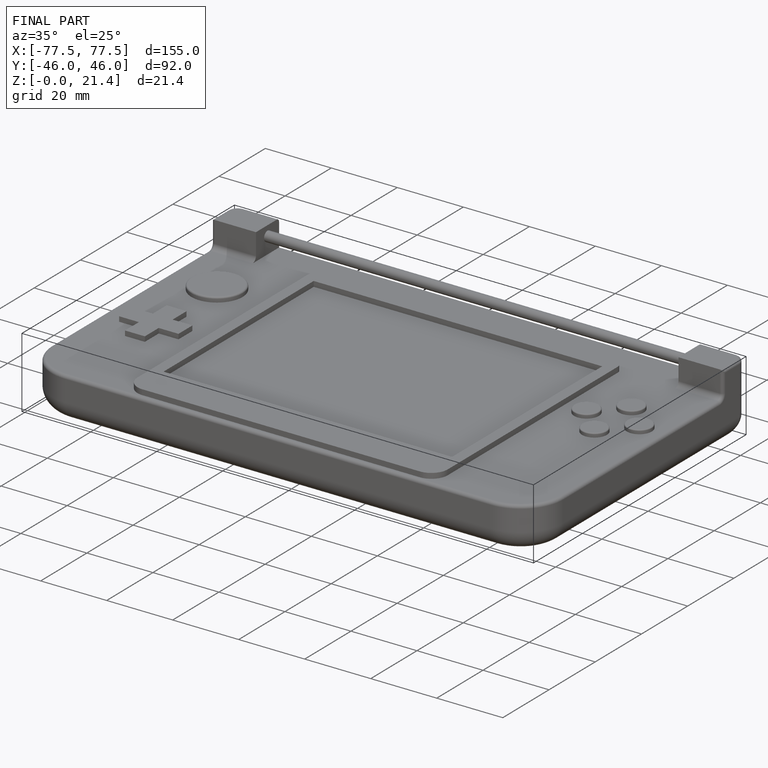
[diagram: finished part — iso view with bounding-box wireframe]
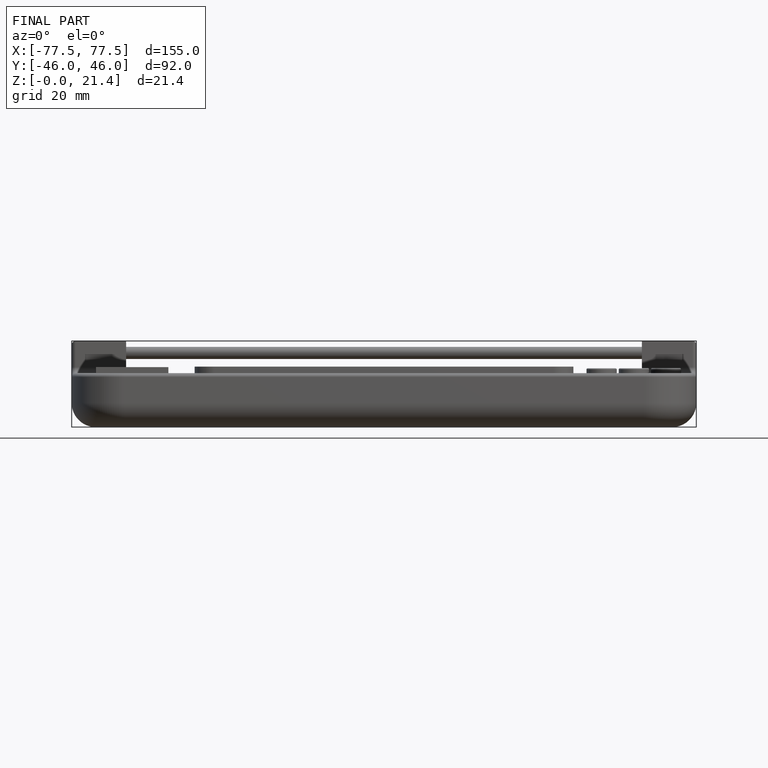
[diagram: finished part — front view with bounding-box wireframe]
